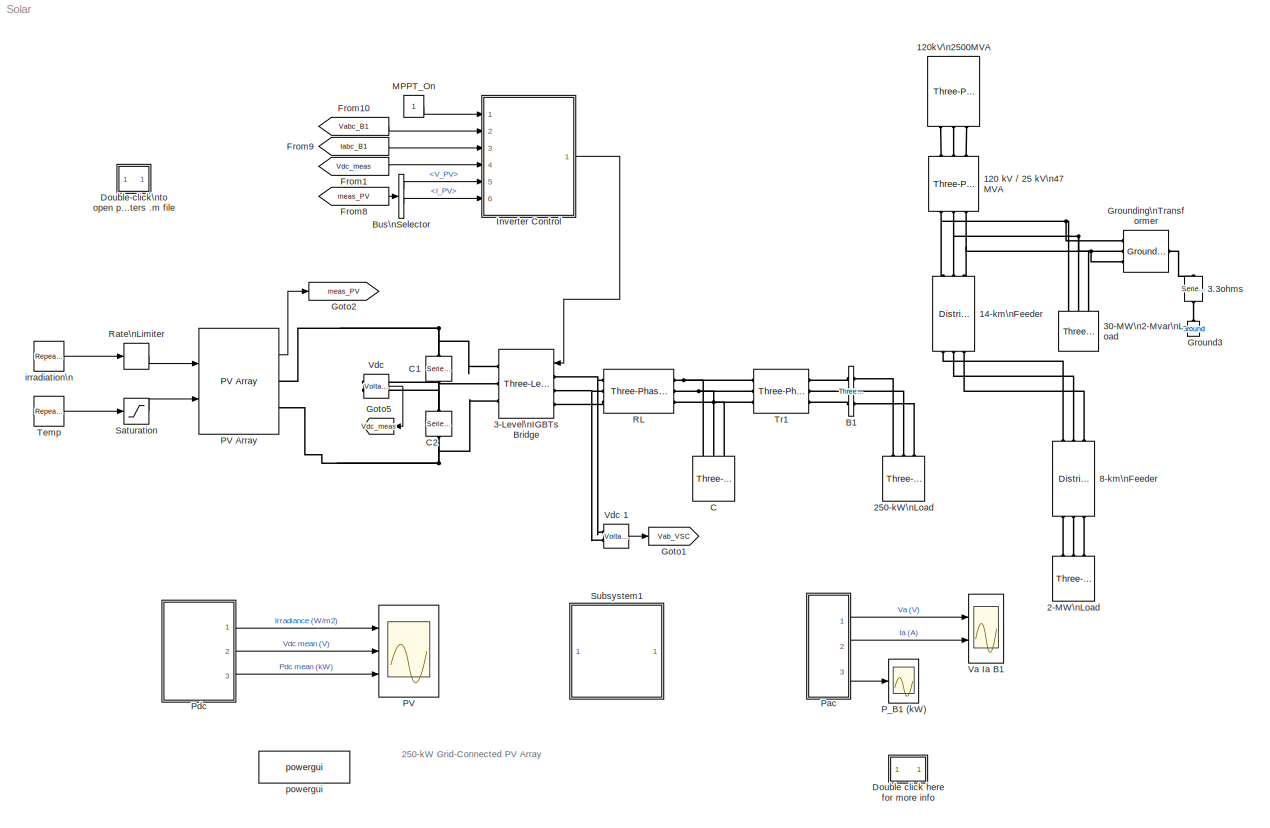
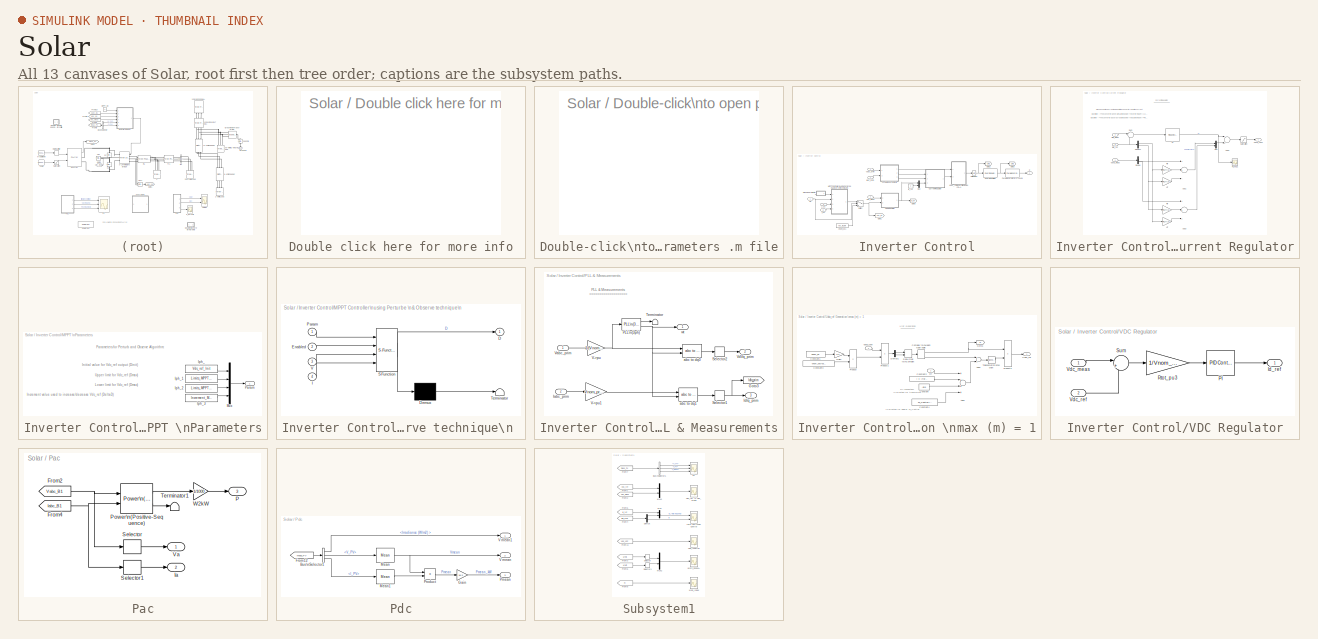
[diagram: thumbnail index - all 13 canvases of the model, root first then tree order]
MODEL Solar
KIND model
CONFIG InitFcn = power_PVarray_250kW_param;
CONFIG PreLoadFcn = power_PVarray_250kW_param;
BLOCK [Reference] 120 kV // 25 kV\n47 MVA  REF=powerlib/Elements/Three-Phase\nTransformer\n(Two Windings)
  AttributesFormatString = \\n
  BreakLoop = off
  CoreType = Three single-phase transformers
  DataFile = 'basic_model'
  DataType = off
  DiscreteSolver = Trapezoidal iterative
  Hysteresis = off
  InitialFluxes = [ 0.8 , -0.8 , 0.7 ]
  L0 = 0.5
  Lm = 500
  Measurements = None
  NominalPower = [47e6 Fnom ]
  Ports = [0, 0, 0, 0, 0, 3, 3]
  Rm = 500
  SID = 1867
  Saturation = [ 0,0  ;  0.005,1.2  ;  1.0,1.4 ]
  SetInitialFlux = off
  SetSaturation = off
  SourceBlock = powerlib/Elements/Three-Phase\nTransformer\n(Two Windings)
  SourceProductBaseCode = PS
  SourceProductName = Simscape Electrical
  SourceType = Three-Phase Transformer (Two Windings)
  TransfoNumber = 0
  UNITS = pu
  Winding1 = [ 120e3  0.08/30   0.08 ]
  Winding1Connection = Yg
  Winding2 = [ Vnom_prim  0.08/30  0.08]
  Winding2Connection = Delta (D1)
BLOCK [Reference] 120kV\n2500MVA  REF=powerlib/Electrical\nSources/Three-Phase Source
  BaseVoltage = 120e3
  BusType = swing
  Frequency = Fnom
  Inductance = 16.58e-3
  InternalConnection = Yg
  NonIdealSource = on
  PhaseAngle = 0
  PhaseAngles_phases = [0 -120 +120]
  Ports = [0, 0, 0, 0, 0, 0, 3]
  Pref = 0
  Prefabc = [10e3, 10e3, 10e3]
  Qmax = inf
  Qmin = -inf
  Qref = 0
  Qrefabc = [0, 0, 0]
  Resistance = 0.8929
  SID = 1868
  ShortCircuitLevel = 2500e6
  SourceBlock = powerlib/Electrical\nSources/Three-Phase Source
  SourceProductBaseCode = PS
  SourceProductName = Simscape Electrical
  SourceType = Three-Phase Source
  SpecifyImpedance = on
  Voltage = 120e3*1.02
  VoltagePhases = off
  Voltage_phases = [25e3 25e3 25e3]/sqrt(3)
  XRratio = 7
BLOCK [Reference] 14-km\nFeeder  REF=powerlib/Elements/Distributed Parameters Line
  Capacitance = [11.33e-009 5.01e-009]
  Frequency = Fnom
  I1 = ones(3,3)
  I2 = ones(3,3)
  Inductance = [1.05e-3 3.32e-3]
  Length = 14
  Measurements = None
  Phases = 3
  Ports = [0, 0, 0, 0, 0, 3, 3]
  Resistance = [0.1153 0.413]
  SID = 1877
  SourceBlock = powerlib/Elements/Distributed Parameters Line
  SourceProductBaseCode = PS
  SourceProductName = Simscape Electrical
  SourceType = Distributed Parameters Line
  V1 = ones(3,3)
  V2 = ones(3,3)
  nHarmo = 1
  x1 = [-6.06060606060606e-05 2.4750499652042e-09 -3576.42610891627 -24705.9443102034;-5.55555555555556e-05 2.47120738765454e-09 -3529.3796467449 -24712.7090235075;-5.05050505050505e-05 2.46735585148894e-09 -3482.32038987367 -24719.3841483496;-4.54545454545455e-05 2.46349537066995e-09 -3435.2485089017 -24725.9696605309;-4.04040404040404e-05 2.4596259591926e-09 -3388.16417447388 -24732.4655361777;-3.53535...<+545ch>
  x2 = [-6.06060606060606e-05 2.20971471483053e-09 -4045.01586007327 -24492.383894194;-5.55555555555556e-05 2.20645346022608e-09 -3998.37516637216 -24500.0411868583;-5.05050505050505e-05 2.20318420679106e-09 -3951.71997776958 -24507.6096620236;-4.54545454545455e-05 2.19990696637717e-09 -3905.05046339984 -24515.0892922526;-4.04040404040404e-05 2.19662175086506e-09 -3858.36679244917 -24522.4800504301;-3.53...<+545ch>
  x3 = [-6.06060606060606e-05 -1.70170032827132e-11 0.349732307299029 7.33339900959955;-5.55555555555556e-05 -1.70367702304972e-11 0.335768922747628 7.33405160544165;-5.05050505050505e-05 -1.70564754166167e-11 0.321804320967417 7.3346776138949;-4.54545454545455e-05 -1.70761187696365e-11 0.307838552582841 7.33527703268989;-4.04040404040404e-05 -1.70957002183456e-11 0.293871668222575 7.33584985965362;-3.53...<+547ch>
  x4 = [-6.06060606060606e-05 2.25999955234279e-11 -26.7530894115626 -168.075719805462;-5.55555555555556e-05 2.26122579132764e-11 -26.433025690119 -168.126352883932;-5.05050505050505e-05 2.26244383292138e-11 -26.1128661437249 -168.176376471094;-4.54545454545455e-05 2.26365367270838e-11 -25.7926119330219 -168.225790385599;-4.04040404040404e-05 2.26485530630272e-11 -25.4722642189951 -168.274594448315;-3.53...<+547ch>
  x5 = 5.70973484498186e-05
BLOCK [Reference] 2-MW\nLoad  REF=powerlib/Elements/Three-Phase\nParallel RLC Load
  ActivePower = 2e6
  AttributesFormatString = \\n
  CapacitivePower = 0
  Configuration = Y (grounded)
  InductivePower = 0
  LConnTagsString = A|B|C
  LoadType = constant Z
  Measurements = None
  NominalFrequency = Fnom
  NominalVoltage = Vnom_prim
  Pabc = [10e3 9e3 11e3]
  Pabcp = [10e3 9e3 11e3]
  Ports = [0, 0, 0, 0, 0, 3]
  QCabc = [100 90 110]
  QCabcp = [100 90 110]
  QLabc = [100 90 110]
  QLabcp = [100 90 110]
  SID = 1876
  SourceBlock = powerlib/Elements/Three-Phase\nParallel RLC Load
  SourceProductBaseCode = PS
  SourceProductName = Simscape Electrical
  SourceType = Three-Phase Parallel RLC Load
  UnbalancedPower = off
  Vabc = [1e3 1e3 1e3]
  Vabcp = [1e3 1e3 1e3]
BLOCK [Reference] 250-kW\nLoad  REF=powerlib/Elements/Three-Phase\nParallel RLC Load
  ActivePower = 250e3
  AttributesFormatString = \\n
  CapacitivePower = 0
  Configuration = Y (grounded)
  InductivePower = 0
  LConnTagsString = A|B|C
  LoadType = constant Z
  Measurements = None
  NominalFrequency = Fnom
  NominalVoltage = Vnom_prim
  Pabc = [10e3 9e3 11e3]
  Pabcp = [10e3 9e3 11e3]
  Ports = [0, 0, 0, 0, 0, 3]
  QCabc = [100 90 110]
  QCabcp = [100 90 110]
  QLabc = [100 90 110]
  QLabcp = [100 90 110]
  SID = 2209
  SourceBlock = powerlib/Elements/Three-Phase\nParallel RLC Load
  SourceProductBaseCode = PS
  SourceProductName = Simscape Electrical
  SourceType = Three-Phase Parallel RLC Load
  UnbalancedPower = off
  Vabc = [1e3 1e3 1e3]
  Vabcp = [1e3 1e3 1e3]
BLOCK [Reference] 3-Level\nIGBTs Bridge  REF=powerlib/Power\nElectronics/Three-Level Bridge
  Arms = 3
  AttributesFormatString = \\n
  Device = IGBT / Diodes
  ForwardVoltages = [  Vfd  Vf ]
  Measurements = None
  Ports = [1, 0, 0, 0, 0, 3, 3]
  Ron = Ron
  SID = 497
  SbubberCapacitance = Cs
  SnubberResistance = Rs
  SourceBlock = powerlib/Power\nElectronics/Three-Level Bridge
  SourceProductBaseCode = PS
  SourceProductName = Simscape Electrical
  SourceType = Three-Level Bridge
BLOCK [Reference] 3.3ohms   REF=powerlib/Elements/Series RLC Branch
  BranchType = R
  Capacitance = []
  Inductance = []
  InitialCurrent = 0
  InitialVoltage = 0
  LConnTagsString = __new0
  Measurements = None
  Ports = [0, 0, 0, 0, 0, 1, 1]
  RConnTagsString = __new0
  Resistance = 3.3
  SID = 1871
  SetiL0 = off
  Setx0 = off
  SourceBlock = powerlib/Elements/Series RLC Branch
  SourceProductBaseCode = PS
  SourceProductName = Simscape Electrical
  SourceType = Series RLC Branch
BLOCK [Reference] 30-MW\n2-Mvar\nLoad  REF=powerlib/Elements/Three-Phase\nParallel RLC Load
  ActivePower = 30e6
  AttributesFormatString = \\n
  CapacitivePower = 0
  Configuration = Y (grounded)
  InductivePower = 2e6
  LConnTagsString = A|B|C
  LoadType = constant Z
  Measurements = None
  NominalFrequency = Fnom
  NominalVoltage = Vnom_prim
  Pabc = [10e3 9e3 11e3]
  Pabcp = [10e3 9e3 11e3]
  Ports = [0, 0, 0, 0, 0, 3]
  QCabc = [100 90 110]
  QCabcp = [100 90 110]
  QLabc = [100 90 110]
  QLabcp = [100 90 110]
  SID = 1872
  SourceBlock = powerlib/Elements/Three-Phase\nParallel RLC Load
  SourceProductBaseCode = PS
  SourceProductName = Simscape Electrical
  SourceType = Three-Phase Parallel RLC Load
  UnbalancedPower = off
  Vabc = [1e3 1e3 1e3]
  Vabcp = [1e3 1e3 1e3]
BLOCK [Reference] 8-km\nFeeder  REF=powerlib/Elements/Distributed Parameters Line
  Capacitance = [11.33e-009 5.01e-009]
  Frequency = Fnom
  I1 = ones(3,3)
  I2 = ones(3,3)
  Inductance = [1.05e-3 3.32e-3]
  Length = 8
  Measurements = None
  Phases = 3
  Ports = [0, 0, 0, 0, 0, 3, 3]
  Resistance = [0.1153 0.413]
  SID = 2208
  SourceBlock = powerlib/Elements/Distributed Parameters Line
  SourceProductBaseCode = PS
  SourceProductName = Simscape Electrical
  SourceType = Distributed Parameters Line
  V1 = ones(3,3)
  V2 = ones(3,3)
  nHarmo = 1
  x1 = [-3.53535353535354e-05 2.19332857216427e-09 -3811.66913415511 -24529.7819097632;-3.03030303030303e-05 2.19002744221325e-09 -3764.95765780591 -24536.9948437812;-2.52525252525253e-05 2.18671837297923e-09 -3718.23253273994 -24544.1188263357;-2.02020202020202e-05 2.18340137645824e-09 -3671.493928345 -24551.1538316011;-1.51515151515152e-05 2.18007646467506e-09 -3624.74201405781 -24558.0998340738;-1.010...<+151ch>
  x2 = [-3.53535353535354e-05 2.22935392180009e-09 -4047.76151412798 -24417.95076388;-3.03030303030303e-05 2.22623375076615e-09 -4001.26253571318 -24425.6134191717;-2.52525252525253e-05 2.22310550919418e-09 -3954.74905192964 -24433.1875267797;-2.02020202020202e-05 2.21996920842467e-09 -3908.22123139794 -24440.6730592464;-1.51515151515152e-05 2.21682485982734e-09 -3861.67924279064 -24448.0699894352;-1.010...<+152ch>
  x3 = [-3.53535353535354e-05 -5.68023514162812e-12 -0.39427735646184 -2.24142141422518;-3.03030303030303e-05 -5.67363395722736e-12 -0.390008987980582 -2.24216805330469;-2.52525252525253e-05 -5.66701220478041e-12 -0.38573920563954 -2.24290656408116;-2.02020202020202e-05 -5.66036990829242e-12 -0.38146802491752 -2.24363694387735;-1.51515151515152e-05 -5.65370709184305e-12 -0.377195461298399 -2.244359190045...<+164ch>
  x4 = [-3.53535353535354e-05 1.15734193036047e-11 -26.1994856823658 -158.04729334921;-3.03030303030303e-05 1.15572122743649e-11 -25.8985170321696 -158.096890546797;-2.52525252525253e-05 1.15409633479429e-11 -25.5974544947225 -158.145914611861;-2.02020202020202e-05 1.15246725832443e-11 -25.2962991614359 -158.19436536668;-1.51515151515152e-05 1.15083400393262e-11 -24.9950521240574 -158.24224263561;-1.0101...<+151ch>
  x5 = 3.26270562570392e-05
BLOCK [Reference] B1  REF=powerlib/Measurements/Three-Phase\nV-I Measurement
  CurrentMeasurement = yes
  Ipu = off
  LabelI = Iabc_B1
  LabelV = Vabc_B1
  OutputType = Magnitude
  PSBequivalent = 0
  Pbase = 100e6
  PhasorSimulation = off
  Ports = [0, 0, 0, 0, 0, 3, 3]
  SID = 596
  SetLabelI = on
  SetLabelV = on
  SourceBlock = powerlib/Measurements/Three-Phase\nV-I Measurement
  SourceProductBaseCode = PS
  SourceProductName = Simscape Electrical
  SourceType = Three-Phase VI Measurement
  Vbase = 500e3
  VoltageMeasurement = phase-to-ground
  Vpu = off
  VpuLL = off
BLOCK [BusSelector] Bus\nSelector
  OutputAsBus = off
  OutputSignals = V_PV,I_PV
  Ports = [1, 2]
  SID = 1904
BLOCK [Reference] C  REF=powerlib/Elements/Three-Phase\nSeries RLC Load
  ActivePower = Pc
  AttributesFormatString = \\n
  CapacitivePower = Qc
  Configuration = Delta
  InductivePower = 0
  LConnTagsString = A|B|C
  LoadType = constant Z
  Measurements = None
  NominalFrequency = Fnom
  NominalVoltage = Vnom_sec
  Pabc = [10e3 9e3 11e3]
  Pabcp = [10e3 9e3 11e3]
  Ports = [0, 0, 0, 0, 0, 3]
  QCabc = [100 90 110]
  QCabcp = [100 90 110]
  QLabc = [100 90 110]
  QLabcp = [100 90 110]
  SID = 809
  SourceBlock = powerlib/Elements/Three-Phase\nSeries RLC Load
  SourceProductBaseCode = PS
  SourceProductName = Simscape Electrical
  SourceType = Three-Phase Series RLC Load
  UnbalancedPower = off
  Vabc = [1e3 1e3 1e3]
  Vabcp = [1e3 1e3 1e3]
BLOCK [Reference] C1  REF=powerlib/Elements/Series RLC Branch
  AttributesFormatString = \\n
  BranchType = C
  Capacitance = Clink
  Inductance = 1.0
  InitialCurrent = 0
  InitialVoltage = Vnom_dc/2
  LConnTagsString = __new0
  Measurements = None
  Ports = [0, 0, 0, 0, 0, 1, 1]
  RConnTagsString = __new0
  Resistance = 1.0
  SID = 495
  SetiL0 = off
  Setx0 = on
  SourceBlock = powerlib/Elements/Series RLC Branch
  SourceProductBaseCode = PS
  SourceProductName = Simscape Electrical
  SourceType = Series RLC Branch
BLOCK [Reference] C2  REF=powerlib/Elements/Series RLC Branch
  AttributesFormatString = \\n
  BranchType = C
  Capacitance = Clink
  Inductance = 1.0
  InitialCurrent = 0
  InitialVoltage = Vnom_dc/2
  LConnTagsString = __new0
  Measurements = None
  Ports = [0, 0, 0, 0, 0, 1, 1]
  RConnTagsString = __new0
  Resistance = 1.0
  SID = 1075
  SetiL0 = off
  Setx0 = on
  SourceBlock = powerlib/Elements/Series RLC Branch
  SourceProductBaseCode = PS
  SourceProductName = Simscape Electrical
  SourceType = Series RLC Branch
BLOCK [SubSystem] Double click here for more info
  OpenFcn = showdemo(bdroot(gcb))
  Ports = []
  RequestExecContextInheritance = off
  SID = 2762
BLOCK [SubSystem] Double-click\nto open parameters .m file
  OpenFcn = open('power_PVarray_250kW_param.m')
  Ports = []
  RequestExecContextInheritance = off
  SID = 2219
BLOCK [From] From1
  CloseFcn = tagdialog Close
  GotoTag = Vdc_meas
  SID = 1902
  TagVisibility = global
BLOCK [From] From10
  CloseFcn = tagdialog Close
  GotoTag = Vabc_B1
  SID = 601
  TagVisibility = global
BLOCK [From] From8
  CloseFcn = tagdialog Close
  GotoTag = meas_PV
  SID = 1905
  TagVisibility = global
BLOCK [From] From9
  CloseFcn = tagdialog Close
  GotoTag = Iabc_B1
  SID = 600
  TagVisibility = global
BLOCK [Goto] Goto1
  GotoTag = Vab_VSC
  SID = 1006
  TagVisibility = global
BLOCK [Goto] Goto2
  GotoTag = meas_PV
  SID = 1244
  TagVisibility = global
BLOCK [Goto] Goto5
  GotoTag = Vdc_meas
  SID = 603
  TagVisibility = global
BLOCK [Reference] Ground3  REF=powerlib/Elements/Ground
  AttributesFormatString = \\n
  LConnTagsString = a
  Ports = [0, 0, 0, 0, 0, 1]
  SID = 1873
  SourceBlock = powerlib/Elements/Ground
  SourceProductBaseCode = PS
  SourceProductName = Simscape Electrical
  SourceType = Ground
BLOCK [Reference] Grounding\nTransformer   REF=powerlib/Elements/Grounding\nTransformer 
  MagnetizationBranch_SI = [1041.7 3.927e+005]
  MagnetizationBranch_pu = [500 500]
  Measurements = None
  NominalPower = [100e6   Fnom]
  NominalVoltage = Vnom_prim
  Ports = [0, 0, 0, 0, 0, 3, 1]
  SID = 1874
  SourceBlock = powerlib/Elements/Grounding\nTransformer
  SourceProductBaseCode = PS
  SourceProductName = Simscape Electrical
  SourceType = Grounding Transformer
  UNITS = pu
  ZeroSequenceImpedance_SI = [0.052083 589.05]
  ZeroSequenceImpedance_pu = [0.025 0.75]
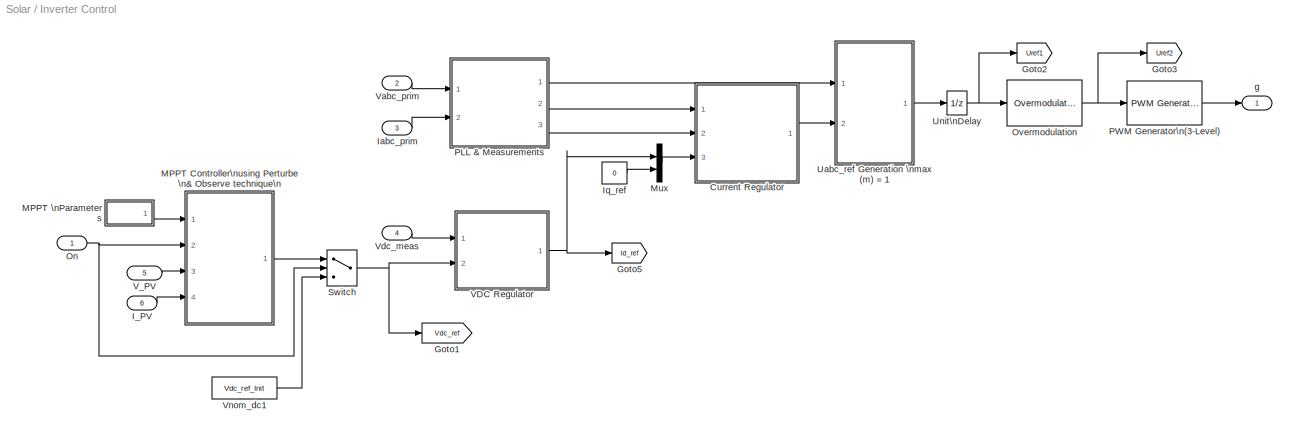
BLOCK [SubSystem] Inverter Control
  Ports = [6, 1]
  RequestExecContextInheritance = off
  SID = 856
BLOCK [SubSystem] Inverter Control/Current Regulator
  Ports = [3, 1]
  RequestExecContextInheritance = off
  SID = 861
BLOCK [Sum] Inverter Control/Current Regulator/Add1
  InputSameDT = off
  Inputs = ++-
  OutDataTypeStr = Inherit: Inherit via internal rule
  Ports = [3, 1]
  SID = 865
  SaturateOnIntegerOverflow = off
BLOCK [Sum] Inverter Control/Current Regulator/Add2
  InputSameDT = off
  OutDataTypeStr = Inherit: Inherit via internal rule
  Ports = [2, 1]
  SID = 866
  SaturateOnIntegerOverflow = off
BLOCK [Sum] Inverter Control/Current Regulator/Add3
  InputSameDT = off
  Inputs = +++
  OutDataTypeStr = Inherit: Inherit via internal rule
  Ports = [3, 1]
  SID = 867
  SaturateOnIntegerOverflow = off
BLOCK [Demux] Inverter Control/Current Regulator/Demux
  DisplayOption = bar
  Outputs = 2
  Ports = [1, 2]
  SID = 868
BLOCK [Demux] Inverter Control/Current Regulator/Demux1
  DisplayOption = bar
  Outputs = 2
  Ports = [1, 2]
  SID = 869
BLOCK [Inport] Inverter Control/Current Regulator/IdIq_meas
  IconDisplay = Port number
  Port = 2
  PortDimensions = 2
  SID = 863
BLOCK [Inport] Inverter Control/Current Regulator/IdIq_ref
  IconDisplay = Port number
  Port = 3
  PortDimensions = 2
  SID = 864
BLOCK [Gain] Inverter Control/Current Regulator/Lff
  Gain = RLff(2)
  SID = 872
BLOCK [Gain] Inverter Control/Current Regulator/Lff  
  Gain = RLff(2)
  SID = 871
BLOCK [Mux] Inverter Control/Current Regulator/Mux
  DisplayOption = bar
  Inputs = 2
  Ports = [2, 1]
  SID = 873
BLOCK [Reference] Inverter Control/Current Regulator/PI  REF=simulink/Continuous/PID Controller
  AWVariant = Passthrough
  AntiWindupMode = none
  Controller = PI
  ControllerParametersSource = internal
  D = 0
  DGainOutDataTypeStr = Inherit: Inherit via internal rule
  DOutMax = []
  DOutMin = []
  DParamDataTypeStr = Inherit: Inherit via internal rule
  DParamMax = []
  DParamMin = []
  DProdOutDataTypeStr = Inherit: Inherit via internal rule
  DVariant = Disabled
  DerivativeFilterVariant = Disabled
  DifferentiatorICPrevScaledInput = 0
  DifferentiatorOutDataTypeStr = Inherit: Inherit via internal rule
  DifferentiatorOutMax = []
  DifferentiatorOutMin = []
  DivideOutDataTypeStr = Inherit: Inherit via internal rule
  DivideOutMax = []
  DivideOutMin = []
  ExternalReset = none
  ExternalResetVariant = Disabled
  FdbkBlocksVariant = Forward
  FilterContinuousStateAttributes = ''
  FilterDiffDenAccumDataTypeStr = Inherit: Inherit via internal rule
  FilterDiffDenProductOutputDataTypeStr = Inherit: Inherit via internal rule
  FilterDiffNumAccumDataTypeStr = Inherit: Inherit via internal rule
  FilterDiffNumProductOutputDataTypeStr = Inherit: Inherit via internal rule
  FilterDiffOutCoefDataTypeStr = Inherit: Inherit via internal rule
  FilterDiffOutCoefMax = []
  FilterDiffOutCoefMin = []
  FilterICVariant = Disabled
  FilterMethod = Forward Euler
  FilterOutDataTypeStr = Inherit: Inherit via internal rule
  FilterOutMax = []
  FilterOutMin = []
  FilterRTWStateStorageClass = Auto
  FilterStateMustResolveToSignalObject = off
  Form = Parallel
  I = Ki_Ireg
  IGainOutDataTypeStr = Inherit: Inherit via internal rule
  IOutMax = []
  IOutMin = []
  IParamDataTypeStr = Inherit: Inherit via internal rule
  IParamMax = []
  IParamMin = []
  IProdOutDataTypeStr = Inherit: Inherit via internal rule
  IVariant = InternalParameters
  IdealPFdbkVariant = Disabled
  IdealPVariant = Disabled
  IgnoreLimit = off
  InitialConditionForFilter = 0
  InitialConditionForIntegrator = 0
  InitialConditionSetting = Auto
  InitialConditionSource = internal
  IntegratorContinuousStateAttributes = ''
  IntegratorICVariant = InternalICs
  IntegratorMethod = Forward Euler
  IntegratorOutDataTypeStr = Inherit: Inherit via internal rule
  IntegratorOutMax = []
  IntegratorOutMin = []
  IntegratorRTWStateStorageClass = Auto
  IntegratorStateMustResolveToSignalObject = off
  IntegratorVariant = Discrete
  Kb = 1
  KbOutDataTypeStr = Inherit: Inherit via internal rule
  KbOutMax = []
  KbOutMin = []
  KbParamDataTypeStr = Inherit: Inherit via internal rule
  KbParamMax = []
  KbParamMin = []
  Kt = 1
  KtOutDataTypeStr = Inherit: Inherit via internal rule
  KtOutMax = []
  KtOutMin = []
  KtParamDataTypeStr = Inherit: Inherit via internal rule
  KtParamMax = []
  KtParamMin = []
  LimitOutput = on
  LinearizeAsGain = off
  LockScale = off
  LowerSaturationLimit = LimitL_Ireg
  N = 100
  NCopyVariant = Disabled_SignalSpec
  NGainOutDataTypeStr = Inherit: Inherit via internal rule
  NOutMax = []
  NOutMin = []
  NParamDataTypeStr = Inherit: Inherit via internal rule
  NParamMax = []
  NParamMin = []
  NProdOutDataTypeStr = Inherit: Inherit via internal rule
  NVariant = Disabled
  P = Kp_Ireg
  PCopyVariant = Disabled
  PGainOutDataTypeStr = Inherit: Inherit via internal rule
  POutMax = []
  POutMin = []
  PParamDataTypeStr = Inherit: Inherit via internal rule
  PParamMax = []
  PParamMin = []
  PProdOutDataTypeStr = Inherit: Inherit via internal rule
  ParallelPVariant = InternalParameters
  Ports = [1, 1]
  ReciprocalOutDataTypeStr = Inherit: Inherit via internal rule
  ReciprocalOutMax = []
  ReciprocalOutMin = []
  RndMeth = Floor
  SID = 874
  SampleTime = Ts_Control
  SatFdbkVariant = Disabled
  SatVariant = Enabled
  SaturateOnIntegerOverflow = off
  SaturationOutDataTypeStr = Inherit: Same as input
  SaturationOutMax = []
  SaturationOutMin = []
  SourceBlock = simulink/Continuous/PID Controller
  SourceProductBaseCode = SL
  SourceProductName = Simulink
  SourceType = PID 1dof
  SumAccumDataTypeStr = Inherit: Inherit via internal rule
  SumDAccumDataTypeStr = Inherit: Inherit via internal rule
  SumDOutDataTypeStr = Inherit: Inherit via internal rule
  SumDOutMax = []
  SumDOutMin = []
  SumDenAccumDataTypeStr = Inherit: Inherit via internal rule
  SumDenOutDataTypeStr = Inherit: Inherit via internal rule
  SumDenOutMax = []
  SumDenOutMin = []
  SumFdbkVariant = Disabled
  SumI1AccumDataTypeStr = Inherit: Inherit via internal rule
  SumI1OutDataTypeStr = Inherit: Inherit via internal rule
  SumI1OutMax = []
  SumI1OutMin = []
  SumI2AccumDataTypeStr = Inherit: Inherit via internal rule
  SumI2OutDataTypeStr = Inherit: Inherit via internal rule
  SumI2OutMax = []
  SumI2OutMin = []
  SumI3AccumDataTypeStr = Inherit: Inherit via internal rule
  SumI3OutDataTypeStr = Inherit: Inherit via internal rule
  SumI3OutMax = []
  SumI3OutMin = []
  SumI4AccumDataTypeStr = Inherit: Inherit via internal rule
  SumI4OutDataTypeStr = Inherit: Inherit via internal rule
  SumI4OutMax = []
  SumI4OutMin = []
  SumNumAccumDataTypeStr = Inherit: Inherit via internal rule
  SumNumOutDataTypeStr = Inherit: Inherit via internal rule
  SumNumOutMax = []
  SumNumOutMin = []
  SumOutDataTypeStr = Inherit: Inherit via internal rule
  SumOutMax = []
  SumOutMin = []
  SumVariant = Sum_PI
  TRSumVariant = Passthrough
  TRVariant = Disabled
  TimeDomain = Discrete-time
  TrackingMode = off
  TunerSelectOption = Transfer Function Based (PID Tuner App)
  UpperSaturationLimit = LimitU_Ireg
  UseFilter = on
  ZeroCross = on
BLOCK [Scope] Inverter Control/Current Regulator/PI_Ireg1
  Floating = off
  NumInputPorts = 1
  Ports = [1]
  SID = 876
  ScopeSpecificationString = C++SS(StrPVP('Location','[1318, 429, 1642, 668]'),MxPVP('AxesTitles',53,'struct(''axes1'',''%<SignalLabel>'')'),MxPVP('ScopeGraphics',56,'struct(''FigureColor'',''[0.5 0.5 0.5]'',''AxesColor'',''[0 0 0]'',''AxesTickColor'',''[1 1 1]'',''LineColors'',''[1 1 0;1 0 1;0 1 1;1 0 0;0 1 0;0 0 1]'',''LineStyles'',''-|-|-|-|-|-'',''LineWidths'',''[0.5 0.5 0.5 0.5 0.5 0.5]'',''MarkerStyles'',''none|none|non...<+191ch>
BLOCK [Gain] Inverter Control/Current Regulator/Rff
  Gain = RLff(1)
  SID = 878
BLOCK [Gain] Inverter Control/Current Regulator/Rff 
  Gain = RLff(1)
  SID = 877
BLOCK [Saturate] Inverter Control/Current Regulator/Saturation
  InputPortMap = u0
  LowerLimit = LimitL_Ireg
  Ports = [1, 1]
  SID = 879
  UpperLimit = LimitU_Ireg
BLOCK [Sum] Inverter Control/Current Regulator/Sum
  IconShape = round
  InputSameDT = off
  Inputs = |-+
  OutDataTypeStr = Inherit: Inherit via internal rule
  Ports = [2, 1]
  SID = 880
  SaturateOnIntegerOverflow = off
BLOCK [Outport] Inverter Control/Current Regulator/VdVq_conv
  IconDisplay = Port number
  SID = 881
BLOCK [Inport] Inverter Control/Current Regulator/VdVq_meas
  IconDisplay = Port number
  PortDimensions = 2
  SID = 862
BLOCK [Goto] Inverter Control/Goto1
  GotoTag = Vdc_ref
  SID = 1897
  TagVisibility = global
BLOCK [Goto] Inverter Control/Goto2
  GotoTag = Uref1
  SID = 2204
  TagVisibility = global
BLOCK [Goto] Inverter Control/Goto3
  GotoTag = Uref2
  SID = 2207
  TagVisibility = global
BLOCK [Goto] Inverter Control/Goto5
  GotoTag = Id_ref
  SID = 1726
  TagVisibility = global
BLOCK [Inport] Inverter Control/I_PV
  IconDisplay = Port number
  Port = 6
  PortDimensions = 1
  SID = 1899
BLOCK [Inport] Inverter Control/Iabc_prim
  IconDisplay = Port number
  Port = 3
  PortDimensions = 3
  SID = 858
BLOCK [Constant] Inverter Control/Iq_ref
  SID = 883
  Value = 0
BLOCK [SubSystem] Inverter Control/MPPT Controller\nusing Perturbe \n& Observe technique\n 
  ErrorFcn = Stateflow.Translate.translate
  PermitHierarchicalResolution = ExplicitOnly
  Ports = [4, 1]
  RequestExecContextInheritance = off
  SFBlockType = MATLAB Function
  SID = 1896
  TreatAsAtomicUnit = on
BLOCK [Demux] Inverter Control/MPPT Controller\nusing Perturbe \n& Observe technique\n / Demux 
  Outputs = 1
  Ports = [1, 1]
  SID = 1896::130
BLOCK [S-Function] Inverter Control/MPPT Controller\nusing Perturbe \n& Observe technique\n / SFunction 
  EnableBusSupport = off
  FunctionName = sf_sfun
  PortCounts = [4 2]
  Ports = [4, 2]
  SFcnIsStateOwnerBlock = off
  SFunctionDeploymentMode = off
  SID = 1896::129
  Tag = Stateflow S-Function Solar 1
BLOCK [Terminator] Inverter Control/MPPT Controller\nusing Perturbe \n& Observe technique\n / Terminator 
  SID = 1896::131
BLOCK [Outport] Inverter Control/MPPT Controller\nusing Perturbe \n& Observe technique\n /D
  IconDisplay = Port number
  SID = 1896::35
BLOCK [Inport] Inverter Control/MPPT Controller\nusing Perturbe \n& Observe technique\n /Enabled
  IconDisplay = Port number
  Port = 2
  SID = 1896::91
BLOCK [Inport] Inverter Control/MPPT Controller\nusing Perturbe \n& Observe technique\n /I
  IconDisplay = Port number
  Port = 4
  SID = 1896::1
BLOCK [Inport] Inverter Control/MPPT Controller\nusing Perturbe \n& Observe technique\n /Param
  IconDisplay = Port number
  SID = 1896::90
BLOCK [Inport] Inverter Control/MPPT Controller\nusing Perturbe \n& Observe technique\n /V
  IconDisplay = Port number
  Port = 3
  SID = 1896::85
BLOCK [SubSystem] Inverter Control/MPPT \nParameters
  Ports = [0, 1]
  RequestExecContextInheritance = off
  SID = 1883
BLOCK [Constant] Inverter Control/MPPT \nParameters/Iph_
  SID = 1884
  Value = Vdc_ref_Init
BLOCK [Constant] Inverter Control/MPPT \nParameters/Iph_1
  SID = 1885
  Value = Limits_MPPT(1)
BLOCK [Constant] Inverter Control/MPPT \nParameters/Iph_2
  SID = 1886
  Value = Limits_MPPT(2)
BLOCK [Constant] Inverter Control/MPPT \nParameters/Iph_3
  SID = 1887
  Value = Increment_MPPT
BLOCK [Mux] Inverter Control/MPPT \nParameters/Mux
  DisplayOption = bar
  Ports = [4, 1]
  SID = 1888
BLOCK [Outport] Inverter Control/MPPT \nParameters/Param
  IconDisplay = Port number
  SID = 1889
BLOCK [Mux] Inverter Control/Mux
  DisplayOption = bar
  Inputs = 2
  Ports = [2, 1]
  SID = 884
BLOCK [Inport] Inverter Control/On
  IconDisplay = Port number
  PortDimensions = 1
  SID = 1900
BLOCK [Reference] Inverter Control/Overmodulation  REF=powerlib_meascontrol/Pulse & Signal\nGenerators/Overmodulation
  OverModType = Flat top
  Ports = [1, 1]
  SID = 2201
  SourceBlock = powerlib_meascontrol/Pulse & Signal\nGenerators/Overmodulation
  SourceProductBaseCode = PS
  SourceProductName = Simscape Electrical
  SourceType = Overmodulation
BLOCK [SubSystem] Inverter Control/PLL & Measurements
  Ports = [2, 3]
  RequestExecContextInheritance = off
  SID = 885
BLOCK [Goto] Inverter Control/PLL & Measurements/Goto3
  GotoTag = IdIq_prim
  SID = 890
  TagVisibility = global
BLOCK [Inport] Inverter Control/PLL & Measurements/Iabc_prim
  IconDisplay = Port number
  Port = 2
  SID = 887
BLOCK [Outport] Inverter Control/PLL & Measurements/IdIq_prim
  IconDisplay = Port number
  Port = 3
  SID = 900
BLOCK [Reference] Inverter Control/PLL & Measurements/PLL\n(3ph)  REF=powerlib_meascontrol/PLL/PLL\n(3ph)
  AGC = on
  FilterCutOffFreq = 25
  Fmin = 45
  MaxRateChangeFreq = 12
  ParK = [180, 3200, 1]
  Par_Init = [-0.57  Fnom]
  Ports = [1, 2]
  SID = 1409
  SourceBlock = powerlib_meascontrol/PLL/PLL\n(3ph)
  SourceProductBaseCode = PS
  SourceProductName = Simscape Electrical
  SourceType = PLL (3ph)
  TcD = 1e-4
  Ts = Ts_Control
BLOCK [Selector] Inverter Control/PLL & Measurements/Selector1
  IndexOptions = Index vector (dialog)
  Indices = [1 2]
  InputPortWidth = 3
  OutputSizes = 1
  Ports = [1, 1]
  SID = 892
BLOCK [Selector] Inverter Control/PLL & Measurements/Selector2
  IndexOptions = Index vector (dialog)
  Indices = [1 2]
  InputPortWidth = 3
  OutputSizes = 1
  Ports = [1, 1]
  SID = 893
BLOCK [Terminator] Inverter Control/PLL & Measurements/Terminator
  SID = 1094
BLOCK [Gain] Inverter Control/PLL & Measurements/V->pu
  Gain = 1/(Vnom_prim*sqrt(2)/sqrt(3))
  SID = 894
BLOCK [Gain] Inverter Control/PLL & Measurements/V->pu1
  Gain = Vnom_prim*sqrt(3)/Pnom/sqrt(2)
  SID = 895
BLOCK [Inport] Inverter Control/PLL & Measurements/Vabc_prim
  IconDisplay = Port number
  SID = 886
BLOCK [Outport] Inverter Control/PLL & Measurements/VdVq_prim
  IconDisplay = Port number
  Port = 2
  SID = 899
BLOCK [Reference] Inverter Control/PLL & Measurements/abc to dq0  REF=powerlib_meascontrol/Transformations/abc to dq0
  Alignment = 90 degrees behind phase A axis
  Ports = [2, 1]
  SID = 1407
  SourceBlock = powerlib_meascontrol/Transformations/abc to dq0
  SourceProductBaseCode = PS
  SourceProductName = Simscape Electrical
  SourceType = abc to dq0 Transformation
BLOCK [Reference] Inverter Control/PLL & Measurements/abc to dq1  REF=powerlib_meascontrol/Transformations/abc to dq0
  Alignment = 90 degrees behind phase A axis
  Ports = [2, 1]
  SID = 1408
  SourceBlock = powerlib_meascontrol/Transformations/abc to dq0
  SourceProductBaseCode = PS
  SourceProductName = Simscape Electrical
  SourceType = abc to dq0 Transformation
BLOCK [Outport] Inverter Control/PLL & Measurements/wt
  IconDisplay = Port number
  SID = 898
BLOCK [Reference] Inverter Control/PWM Generator\n(3-Level)  REF=powerlib_meascontrol/Pulse & Signal\nGenerators/PWM Generator\n(3-Level)
  Fc = Fc
  Freq = 60
  ModulatingSignals = off
  ModulatorMode = Unsynchronized
  ModulatorType = Three-phase bridge (12 pulses)
  Phase = 0
  Ports = [1, 1]
  SID = 1411
  SourceBlock = powerlib_meascontrol/Pulse & Signal\nGenerators/PWM Generator\n(3-Level)
  SourceProductBaseCode = PS
  SourceProductName = Simscape Electrical
  SourceType = PWM Generator (3-Level)
  Ts = Ts_PWMgenerator
  m = 0.8
  nF = 27
BLOCK [Switch] Inverter Control/Switch
  Criteria = u2 ~= 0
  InputSameDT = off
  SID = 2220
  SaturateOnIntegerOverflow = off
BLOCK [SubSystem] Inverter Control/Uabc_ref Generation \nmax (m) = 1
  Ports = [2, 1]
  RequestExecContextInheritance = off
  SID = 901
BLOCK [Sum] Inverter Control/Uabc_ref Generation \nmax (m) = 1/Add1
  InputSameDT = off
  Inputs = ++++
  OutDataTypeStr = Inherit: Inherit via internal rule
  Ports = [4, 1]
  SID = 904
  SaturateOnIntegerOverflow = off
BLOCK [Sum] Inverter Control/Uabc_ref Generation \nmax (m) = 1/Add2
  InputSameDT = off
  OutDataTypeStr = Inherit: Inherit via internal rule
  Ports = [2, 1]
  SID = 905
  SaturateOnIntegerOverflow = off
BLOCK [ComplexToMagnitudeAngle] Inverter Control/Uabc_ref Generation \nmax (m) = 1/Complex to\nMagnitude-Angle
  Ports = [1, 2]
  SID = 906
BLOCK [Constant] Inverter Control/Uabc_ref Generation \nmax (m) = 1/Constant
  SID = 907
  Value = -pi/6
BLOCK [Constant] Inverter Control/Uabc_ref Generation \nmax (m) = 1/Constant1
  SID = 908
  Value = Vnom_dc
BLOCK [Constant] Inverter Control/Uabc_ref Generation \nmax (m) = 1/Constant2
  SID = 909
  Value = [ 0  -2*pi/3  2*pi/3  ]
BLOCK [Constant] Inverter Control/Uabc_ref Generation \nmax (m) = 1/Constant3
  SID = 910
  Value = Vnom_sec*sqrt(2)/sqrt(3)
BLOCK [Constant] Inverter Control/Uabc_ref Generation \nmax (m) = 1/Constant4
  SID = 911
  Value = Ts_Control*Fnom*(2*pi)
BLOCK [Demux] Inverter Control/Uabc_ref Generation \nmax (m) = 1/Demux1
  DisplayOption = bar
  Outputs = 2
  Ports = [1, 2]
  SID = 912
BLOCK [Gain] Inverter Control/Uabc_ref Generation \nmax (m) = 1/Gain1
  Gain = 1/2
  OutDataTypeStr = Inherit: Inherit via internal rule
  ParamDataTypeStr = Inherit: Inherit via internal rule
  SID = 913
  SaturateOnIntegerOverflow = off
BLOCK [Goto] Inverter Control/Uabc_ref Generation \nmax (m) = 1/Goto1
  GotoTag = m
  SID = 914
  TagVisibility = global
BLOCK [Product] Inverter Control/Uabc_ref Generation \nmax (m) = 1/Product
  InputSameDT = off
  Inputs = */
  OutDataTypeStr = Inherit: Inherit via internal rule
  Ports = [2, 1]
  SID = 916
  SaturateOnIntegerOverflow = off
BLOCK [Product] Inverter Control/Uabc_ref Generation \nmax (m) = 1/Product1
  InputSameDT = off
  Inputs = */
  OutDataTypeStr = Inherit: Inherit via internal rule
  Ports = [2, 1]
  SID = 917
  SaturateOnIntegerOverflow = off
BLOCK [Product] Inverter Control/Uabc_ref Generation \nmax (m) = 1/Product2
  InputSameDT = off
  Inputs = **
  OutDataTypeStr = Inherit: Inherit via internal rule
  Ports = [2, 1]
  SID = 918
  SaturateOnIntegerOverflow = off
BLOCK [RealImagToComplex] Inverter Control/Uabc_ref Generation \nmax (m) = 1/Real-Imag to\nComplex
  Ports = [2, 1]
  SID = 919
BLOCK [Trigonometry] Inverter Control/Uabc_ref Generation \nmax (m) = 1/Trigonometric\nFunction
  Ports = [1, 1]
  SID = 921
BLOCK [Outport] Inverter Control/Uabc_ref Generation \nmax (m) = 1/Uabc_ref
  IconDisplay = Port number
  SID = 922
BLOCK [Inport] Inverter Control/Uabc_ref Generation \nmax (m) = 1/VdVq_conv
  IconDisplay = Port number
  Port = 2
  SID = 903
BLOCK [Inport] Inverter Control/Uabc_ref Generation \nmax (m) = 1/wt
  IconDisplay = Port number
  SID = 902
BLOCK [UnitDelay] Inverter Control/Unit\nDelay
  HasFrameUpgradeWarning = on
  SID = 2203
  SampleTime = Ts_Control
BLOCK [SubSystem] Inverter Control/VDC Regulator
  Ports = [2, 1]
  RequestExecContextInheritance = off
  SID = 1802
BLOCK [Outport] Inverter Control/VDC Regulator/Id_ref
  IconDisplay = Port number
  InitialOutput = 0
  SID = 1810
BLOCK [Reference] Inverter Control/VDC Regulator/PI  REF=simulink/Continuous/PID Controller
  AWVariant = Passthrough
  AntiWindupMode = none
  Controller = PI
  ControllerParametersSource = internal
  D = 0
  DGainOutDataTypeStr = Inherit: Inherit via internal rule
  DOutMax = []
  DOutMin = []
  DParamDataTypeStr = Inherit: Inherit via internal rule
  DParamMax = []
  DParamMin = []
  DProdOutDataTypeStr = Inherit: Inherit via internal rule
  DVariant = Disabled
  DerivativeFilterVariant = Disabled
  DifferentiatorICPrevScaledInput = 0
  DifferentiatorOutDataTypeStr = Inherit: Inherit via internal rule
  DifferentiatorOutMax = []
  DifferentiatorOutMin = []
  DivideOutDataTypeStr = Inherit: Inherit via internal rule
  DivideOutMax = []
  DivideOutMin = []
  ExternalReset = none
  ExternalResetVariant = Disabled
  FdbkBlocksVariant = Forward
  FilterContinuousStateAttributes = ''
  FilterDiffDenAccumDataTypeStr = Inherit: Inherit via internal rule
  FilterDiffDenProductOutputDataTypeStr = Inherit: Inherit via internal rule
  FilterDiffNumAccumDataTypeStr = Inherit: Inherit via internal rule
  FilterDiffNumProductOutputDataTypeStr = Inherit: Inherit via internal rule
  FilterDiffOutCoefDataTypeStr = Inherit: Inherit via internal rule
  FilterDiffOutCoefMax = []
  FilterDiffOutCoefMin = []
  FilterICVariant = Disabled
  FilterMethod = Forward Euler
  FilterOutDataTypeStr = Inherit: Inherit via internal rule
  FilterOutMax = []
  FilterOutMin = []
  FilterRTWStateStorageClass = Auto
  FilterStateMustResolveToSignalObject = off
  Form = Parallel
  I = Ki_VDCreg
  IGainOutDataTypeStr = Inherit: Inherit via internal rule
  IOutMax = []
  IOutMin = []
  IParamDataTypeStr = Inherit: Inherit via internal rule
  IParamMax = []
  IParamMin = []
  IProdOutDataTypeStr = Inherit: Inherit via internal rule
  IVariant = InternalParameters
  IdealPFdbkVariant = Disabled
  IdealPVariant = Disabled
  IgnoreLimit = off
  InitialConditionForFilter = 0
  InitialConditionForIntegrator = 1
  InitialConditionSetting = Auto
  InitialConditionSource = internal
  IntegratorContinuousStateAttributes = ''
  IntegratorICVariant = InternalICs
  IntegratorMethod = Trapezoidal
  IntegratorOutDataTypeStr = Inherit: Inherit via internal rule
  IntegratorOutMax = []
  IntegratorOutMin = []
  IntegratorRTWStateStorageClass = Auto
  IntegratorStateMustResolveToSignalObject = off
  IntegratorVariant = Discrete
  Kb = 1
  KbOutDataTypeStr = Inherit: Inherit via internal rule
  KbOutMax = []
  KbOutMin = []
  KbParamDataTypeStr = Inherit: Inherit via internal rule
  KbParamMax = []
  KbParamMin = []
  Kt = 1
  KtOutDataTypeStr = Inherit: Inherit via internal rule
  KtOutMax = []
  KtOutMin = []
  KtParamDataTypeStr = Inherit: Inherit via internal rule
  KtParamMax = []
  KtParamMin = []
  LimitOutput = on
  LinearizeAsGain = off
  LockScale = off
  LowerSaturationLimit = LimitL_VDCreg
  N = 100
  NCopyVariant = Disabled_SignalSpec
  NGainOutDataTypeStr = Inherit: Inherit via internal rule
  NOutMax = []
  NOutMin = []
  NParamDataTypeStr = Inherit: Inherit via internal rule
  NParamMax = []
  NParamMin = []
  NProdOutDataTypeStr = Inherit: Inherit via internal rule
  NVariant = Disabled
  P = Kp_VDCreg
  PCopyVariant = Disabled
  PGainOutDataTypeStr = Inherit: Inherit via internal rule
  POutMax = []
  POutMin = []
  PParamDataTypeStr = Inherit: Inherit via internal rule
  PParamMax = []
  PParamMin = []
  PProdOutDataTypeStr = Inherit: Inherit via internal rule
  ParallelPVariant = InternalParameters
  Ports = [1, 1]
  ReciprocalOutDataTypeStr = Inherit: Inherit via internal rule
  ReciprocalOutMax = []
  ReciprocalOutMin = []
  RndMeth = Floor
  SID = 1807
  SampleTime = Ts_Control
  SatFdbkVariant = Disabled
  SatVariant = Enabled
  SaturateOnIntegerOverflow = off
  SaturationOutDataTypeStr = Inherit: Same as input
  SaturationOutMax = []
  SaturationOutMin = []
  SourceBlock = simulink/Continuous/PID Controller
  SourceProductBaseCode = SL
  SourceProductName = Simulink
  SourceType = PID 1dof
  SumAccumDataTypeStr = Inherit: Inherit via internal rule
  SumDAccumDataTypeStr = Inherit: Inherit via internal rule
  SumDOutDataTypeStr = Inherit: Inherit via internal rule
  SumDOutMax = []
  SumDOutMin = []
  SumDenAccumDataTypeStr = Inherit: Inherit via internal rule
  SumDenOutDataTypeStr = Inherit: Inherit via internal rule
  SumDenOutMax = []
  SumDenOutMin = []
  SumFdbkVariant = Disabled
  SumI1AccumDataTypeStr = Inherit: Inherit via internal rule
  SumI1OutDataTypeStr = Inherit: Inherit via internal rule
  SumI1OutMax = []
  SumI1OutMin = []
  SumI2AccumDataTypeStr = Inherit: Inherit via internal rule
  SumI2OutDataTypeStr = Inherit: Inherit via internal rule
  SumI2OutMax = []
  SumI2OutMin = []
  SumI3AccumDataTypeStr = Inherit: Inherit via internal rule
  SumI3OutDataTypeStr = Inherit: Inherit via internal rule
  SumI3OutMax = []
  SumI3OutMin = []
  SumI4AccumDataTypeStr = Inherit: Inherit via internal rule
  SumI4OutDataTypeStr = Inherit: Inherit via internal rule
  SumI4OutMax = []
  SumI4OutMin = []
  SumNumAccumDataTypeStr = Inherit: Inherit via internal rule
  SumNumOutDataTypeStr = Inherit: Inherit via internal rule
  SumNumOutMax = []
  SumNumOutMin = []
  SumOutDataTypeStr = Inherit: Inherit via internal rule
  SumOutMax = []
  SumOutMin = []
  SumVariant = Sum_PI
  TRSumVariant = Passthrough
  TRVariant = Disabled
  TimeDomain = Discrete-time
  TrackingMode = off
  TunerSelectOption = Transfer Function Based (PID Tuner App)
  UpperSaturationLimit = LimitU_VDCreg
  UseFilter = on
  ZeroCross = on
BLOCK [Gain] Inverter Control/VDC Regulator/Rtot_pu3
  Gain = 1/Vnom_dc
  SID = 1808
BLOCK [Sum] Inverter Control/VDC Regulator/Sum
  IconShape = round
  InputSameDT = off
  Inputs = |+-
  OutDataTypeStr = Inherit: Inherit via internal rule
  Ports = [2, 1]
  SID = 1809
  SaturateOnIntegerOverflow = off
BLOCK [Inport] Inverter Control/VDC Regulator/Vdc_meas
  IconDisplay = Port number
  PortDimensions = 1
  SID = 1803
BLOCK [Inport] Inverter Control/VDC Regulator/Vdc_ref
  IconDisplay = Port number
  Port = 2
  PortDimensions = 1
  SID = 1804
BLOCK [Inport] Inverter Control/V_PV
  IconDisplay = Port number
  Port = 5
  PortDimensions = 1
  SID = 1898
BLOCK [Inport] Inverter Control/Vabc_prim
  IconDisplay = Port number
  Port = 2
  PortDimensions = 3
  SID = 857
BLOCK [Inport] Inverter Control/Vdc_meas
  IconDisplay = Port number
  Port = 4
  PortDimensions = 1
  SID = 1801
BLOCK [Constant] Inverter Control/Vnom_dc1
  SID = 2221
  Value = Vdc_ref_Init
BLOCK [Outport] Inverter Control/g
  IconDisplay = Port number
  SID = 931
BLOCK [Constant] MPPT_On
  SID = 1901
BLOCK [Scope] PV
  Floating = off
  NumInputPorts = 3
  Ports = [3]
  SID = 992
  ScopeSpecificationString = C++SS(StrPVP('Location','[157, 172, 620, 668]'),StrPVP('ZoomMode','yonly'),MxPVP('AxesTitles',53,'struct(''axes1'',''%<SignalLabel>'',''axes2'',''%<SignalLabel>'',''axes3'',''%<SignalLabel>'')'),MxPVP('ScopeGraphics',56,'struct(''FigureColor'',''[0.501960784313725 0.501960784313725 0.501960784313725]'',''AxesColor'',''[0 0 0]'',''AxesTickColor'',''[1 1 1]'',''LineColors'',''[1 1 0;1 0 1;0 1 1;1 0 ...<+355ch>
BLOCK [Reference] PV Array  REF=re_lib/Solar/PV Array
  AttributesFormatString = %<ModuleName>\n%<Nser>-module string\n%<Npar> parallel strings
  BAL = on
  I0 = 7.1712e-13
  IL = 6.0978
  Im = 5.69
  Isc = 6.09
  ModuleName = SunPower SPR-415E-WHT-D
  Ncell = 128
  Npar = 88
  Nser = 7
  PlotType = array @ 1000 W/m2 & specified temperatures
  PlotWhenSelected = off
  Pm = 414.801
  Ports = [2, 1, 0, 0, 0, 0, 2]
  Rs = 0.5371
  Rsh = 419.7813
  SID = 2763
  S_vec = [ 1000  500  100 ]
  SourceBlock = re_lib/Solar/PV Array
  SourceProductBaseCode = PS
  SourceProductName = Simscape Electrical
  SourceType = PV array
  Tc = 1e-6
  Temp_C_vec = [ 45 25  ]
  Tfilter = 5e-5
  Vm = 72.9
  Voc = 85.3
  alpha_Isc = 0.00187
  alpha_Isc_pc = 0.030706
  beta_Voc = -0.19534
  beta_Voc_pc = -0.229
  nI = 0.87223
BLOCK [Scope] P_B1 (kW)
  Floating = off
  NumInputPorts = 1
  Ports = [1]
  SID = 1118
  ScopeSpecificationString = C++SS(StrPVP('Location','[869, 222, 1313, 783]'),StrPVP('ZoomMode','yonly'),MxPVP('AxesTitles',53,'struct(''axes1'',''%<SignalLabel>'')'),MxPVP('ScopeGraphics',56,'struct(''FigureColor'',''[0.5 0.5 0.5]'',''AxesColor'',''[0 0 0]'',''AxesTickColor'',''[1 1 1]'',''LineColors'',''[1 1 0;1 0 1;0 1 1;1 0 0;0 1 0;0 0 1]'',''LineStyles'',''-|-|-|-|-|-'',''LineWidths'',''[0.5 0.5 0.5 0.5 0.5 0.5]'',''Mark...<+239ch>
BLOCK [SubSystem] Pac
  Ports = [0, 3]
  RequestExecContextInheritance = off
  SID = 2174
BLOCK [From] Pac/From2
  CloseFcn = tagdialog Close
  GotoTag = Vabc_B1
  SID = 2189
  TagVisibility = global
BLOCK [From] Pac/From4
  CloseFcn = tagdialog Close
  GotoTag = Iabc_B1
  SID = 2190
  TagVisibility = global
BLOCK [Outport] Pac/Ia
  IconDisplay = Port number
  Port = 2
  SID = 2177
BLOCK [Outport] Pac/P
  IconDisplay = Port number
  Port = 3
  SID = 2175
BLOCK [Reference] Pac/Power\n(Positive-Sequence)  REF=powerlib_meascontrol/Measurements/Power\n(Positive-Sequence)
  Freq = 60
  Iinit = [0, 0]
  Ports = [2, 2]
  SID = 1414
  SourceBlock = powerlib_meascontrol/Measurements/Power\n(Positive-Sequence)
  SourceProductBaseCode = PS
  SourceProductName = Simscape Electrical
  SourceType = Power (Positive-Sequence)
  Ts = Ts_Control
  Vinit = [0, 0]
BLOCK [Selector] Pac/Selector
  IndexOptions = Index vector (dialog)
  Indices = [1]
  InputPortWidth = 3
  OutputSizes = 1
  Ports = [1, 1]
  SID = 1110
BLOCK [Selector] Pac/Selector1
  IndexOptions = Index vector (dialog)
  Indices = [1]
  InputPortWidth = 3
  OutputSizes = 1
  Ports = [1, 1]
  SID = 1111
BLOCK [Terminator] Pac/Terminator1
  SID = 699
BLOCK [Outport] Pac/Va
  IconDisplay = Port number
  SID = 2176
BLOCK [Gain] Pac/W2kW
  Gain = 1/1000
  OutDataTypeStr = Inherit: Inherit via internal rule
  ParamDataTypeStr = Inherit: Inherit via internal rule
  SID = 700
  SaturateOnIntegerOverflow = off
BLOCK [SubSystem] Pdc
  Ports = [0, 3]
  RequestExecContextInheritance = off
  SID = 2184
BLOCK [BusSelector] Pdc/Bus\nSelector1
  OutputAsBus = off
  OutputSignals = Irradiance (W/m2),V_PV,I_PV
  Ports = [1, 3]
  SID = 2191
BLOCK [From] Pdc/From12
  CloseFcn = tagdialog Close
  GotoTag = meas_PV
  SID = 2200
  TagVisibility = global
BLOCK [Gain] Pdc/Gain
  Gain = 1e-3
  OutDataTypeStr = Inherit: Inherit via internal rule
  ParamDataTypeStr = Inherit: Inherit via internal rule
  SID = 1859
  SaturateOnIntegerOverflow = off
BLOCK [Reference] Pdc/Mean  REF=powerlib_meascontrol/Measurements/Mean
  Freq = Fnom
  Ports = [1, 1]
  SID = 1856
  SourceBlock = powerlib_meascontrol/Measurements/Mean
  SourceProductBaseCode = PS
  SourceProductName = Simscape Electrical
  SourceType = Mean
  Ts = Ts_Control
  Vinit = Vnom_dc/2
BLOCK [Reference] Pdc/Mean1  REF=powerlib_meascontrol/Measurements/Mean
  Freq = Fnom
  Ports = [1, 1]
  SID = 1858
  SourceBlock = powerlib_meascontrol/Measurements/Mean
  SourceProductBaseCode = PS
  SourceProductName = Simscape Electrical
  SourceType = Mean
  Ts = Ts_Control
  Vinit = 0
BLOCK [Outport] Pdc/Pmean
  IconDisplay = Port number
  Port = 3
  SID = 2188
BLOCK [Product] Pdc/Product
  InputSameDT = off
  OutDataTypeStr = Inherit: Inherit via internal rule
  Ports = [2, 1]
  RndMeth = Floor
  SID = 1857
  SaturateOnIntegerOverflow = off
BLOCK [Outport] Pdc/V mean
  IconDisplay = Port number
  Port = 2
  SID = 2187
BLOCK [Outport] Pdc/V mean1
  IconDisplay = Port number
  SID = 2764
BLOCK [Reference] RL  REF=powerlib/Elements/Three-Phase\nSeries RLC Branch
  AttributesFormatString = \\n
  BranchType = RL
  Capacitance = inf
  Inductance = RL(2)
  LConnTagsString = A|B|C
  Measurements = None
  Ports = [0, 0, 0, 0, 0, 3, 3]
  RConnTagsString = A|B|C
  Resistance = RL(1)
  SID = 498
  SourceBlock = powerlib/Elements/Three-Phase\nSeries RLC Branch
  SourceProductBaseCode = PS
  SourceProductName = Simscape Electrical
  SourceType = Three-Phase Series RLC Branch
BLOCK [RateLimiter] Rate\nLimiter
  FallingSlewLimit = -6000
  InitialCondition = 1000
  RisingSlewLimit = 6000
  SID = 1864
  SampleTimeMode = inherited
BLOCK [Saturate] Saturation
  InputPortMap = u0
  LowerLimit = 5
  Ports = [1, 1]
  SID = 1866
  UpperLimit = 55
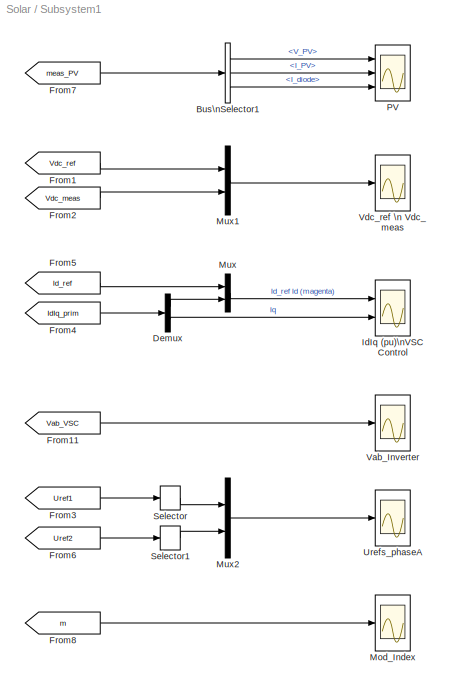
BLOCK [SubSystem] Subsystem1
  Ports = []
  RequestExecContextInheritance = off
  SID = 682
BLOCK [BusSelector] Subsystem1/Bus\nSelector1
  OutputAsBus = off
  OutputSignals = V_PV,I_PV,I_diode
  Ports = [1, 3]
  SID = 2195
BLOCK [Demux] Subsystem1/Demux
  DisplayOption = bar
  Outputs = 2
  Ports = [1, 2]
  SID = 1100
BLOCK [From] Subsystem1/From1
  GotoTag = Vdc_ref
  SID = 2181
  TagVisibility = global
BLOCK [From] Subsystem1/From11
  CloseFcn = tagdialog Close
  GotoTag = Vab_VSC
  SID = 2193
  TagVisibility = global
BLOCK [From] Subsystem1/From2
  GotoTag = Vdc_meas
  SID = 2180
  TagVisibility = global
BLOCK [From] Subsystem1/From3
  CloseFcn = tagdialog Close
  GotoTag = Uref1
  SID = 2210
  TagVisibility = global
BLOCK [From] Subsystem1/From4
  CloseFcn = tagdialog Close
  GotoTag = IdIq_prim
  SID = 1096
  TagVisibility = global
BLOCK [From] Subsystem1/From5
  CloseFcn = tagdialog Close
  GotoTag = Id_ref
  SID = 1098
  TagVisibility = global
BLOCK [From] Subsystem1/From6
  CloseFcn = tagdialog Close
  GotoTag = Uref2
  SID = 2212
  TagVisibility = global
BLOCK [From] Subsystem1/From7
  CloseFcn = tagdialog Close
  GotoTag = meas_PV
  SID = 2196
  TagVisibility = global
BLOCK [From] Subsystem1/From8
  CloseFcn = tagdialog Close
  GotoTag = m
  SID = 2217
  TagVisibility = global
BLOCK [Scope] Subsystem1/IdIq (pu)\nVSC Control
  Floating = off
  NumInputPorts = 2
  Ports = [2]
  SID = 1101
  ScopeSpecificationString = C++SS(StrPVP('Location','[866, 223, 1315, 784]'),StrPVP('ZoomMode','yonly'),MxPVP('AxesTitles',53,'struct(''axes1'',''%<SignalLabel>'',''axes2'',''%<SignalLabel>'')'),MxPVP('ScopeGraphics',56,'struct(''FigureColor'',''[0.5 0.5 0.5]'',''AxesColor'',''[0 0 0]'',''AxesTickColor'',''[1 1 1]'',''LineColors'',''[1 1 0;1 0 1;0 1 1;1 0 0;0 1 0;0 0 1]'',''LineStyles'',''-|-|-|-|-|-'',''LineWidths'',''[0.5 ...<+255ch>
BLOCK [Scope] Subsystem1/Mod_Index
  Floating = off
  NumInputPorts = 1
  Ports = [1]
  SID = 2218
  ScopeSpecificationString = C++SS(StrPVP('Location','[869, 223, 1314, 781]'),MxPVP('AxesTitles',53,'struct(''axes1'',''%<SignalLabel>'')'),MxPVP('ScopeGraphics',56,'struct(''FigureColor'',''[0.5 0.5 0.5]'',''AxesColor'',''[0 0 0]'',''AxesTickColor'',''[1 1 1]'',''LineColors'',''[1 1 0;1 0 1;0 1 1;1 0 0;0 1 0;0 0 1]'',''LineStyles'',''-|-|-|-|-|-'',''LineWidths'',''[0.5 0.5 0.5 0.5 0.5 0.5]'',''MarkerStyles'',''none|none|none...<+255ch>
BLOCK [Mux] Subsystem1/Mux
  DisplayOption = bar
  Inputs = 2
  Ports = [2, 1]
  SID = 1102
BLOCK [Mux] Subsystem1/Mux1
  DisplayOption = bar
  Inputs = 2
  Ports = [2, 1]
  SID = 2183
BLOCK [Mux] Subsystem1/Mux2
  DisplayOption = bar
  Inputs = 2
  Ports = [2, 1]
  SID = 2213
BLOCK [Scope] Subsystem1/PV
  Floating = off
  NumInputPorts = 3
  Ports = [3]
  SID = 2197
  ScopeSpecificationString = C++SS(StrPVP('Location','[868, 223, 1291, 785]'),StrPVP('ZoomMode','yonly'),MxPVP('AxesTitles',53,'struct(''axes1'',''%<SignalLabel>'',''axes2'',''%<SignalLabel>'',''axes3'',''%<SignalLabel>'')'),MxPVP('ScopeGraphics',56,'struct(''FigureColor'',''[0.5 0.5 0.5]'',''AxesColor'',''[0 0 0]'',''AxesTickColor'',''[1 1 1]'',''LineColors'',''[1 1 0;1 0 1;0 1 1;1 0 0;0 1 0;0 0 1]'',''LineStyles'',''-|-|-|-...<+342ch>
BLOCK [Selector] Subsystem1/Selector
  IndexOptions = Index vector (dialog)
  Indices = [1]
  InputPortWidth = 3
  OutputSizes = 1
  Ports = [1, 1]
  SID = 2214
BLOCK [Selector] Subsystem1/Selector1
  IndexOptions = Index vector (dialog)
  Indices = [1]
  InputPortWidth = 3
  OutputSizes = 1
  Ports = [1, 1]
  SID = 2216
BLOCK [Scope] Subsystem1/Urefs_phaseA
  Floating = off
  NumInputPorts = 1
  Ports = [1]
  SID = 2211
  ScopeSpecificationString = C++SS(StrPVP('Location','[866, 224, 1317, 783]'),StrPVP('ZoomMode','xonly'),MxPVP('AxesTitles',53,'struct(''axes1'',''%<SignalLabel>'')'),MxPVP('ScopeGraphics',56,'struct(''FigureColor'',''[0.5 0.5 0.5]'',''AxesColor'',''[0 0 0]'',''AxesTickColor'',''[1 1 1]'',''LineColors'',''[1 1 0;1 0 1;0 1 1;1 0 0;0 1 0;0 0 1]'',''LineStyles'',''-|-|-|-|-|-'',''LineWidths'',''[0.5 0.5 0.5 0.5 0.5 0.5]'',''Mark...<+257ch>
BLOCK [Scope] Subsystem1/Vab_Inverter
  Floating = off
  NumInputPorts = 1
  Ports = [1]
  SID = 2194
  ScopeSpecificationString = C++SS(StrPVP('Location','[867, 224, 1316, 780]'),MxPVP('AxesTitles',53,'struct(''axes1'',''%<SignalLabel>'')'),MxPVP('ScopeGraphics',56,'struct(''FigureColor'',''[0.5 0.5 0.5]'',''AxesColor'',''[0 0 0]'',''AxesTickColor'',''[1 1 1]'',''LineColors'',''[1 1 0;1 0 1;0 1 1;1 0 0;0 1 0;0 0 1]'',''LineStyles'',''-|-|-|-|-|-'',''LineWidths'',''[0.5 0.5 0.5 0.5 0.5 0.5]'',''MarkerStyles'',''none|none|none...<+288ch>
BLOCK [Scope] Subsystem1/Vdc_ref \n Vdc_meas
  Floating = off
  NumInputPorts = 1
  Ports = [1]
  SID = 2182
  ScopeSpecificationString = C++SS(StrPVP('Location','[867, 223, 1313, 784]'),StrPVP('ZoomMode','yonly'),MxPVP('AxesTitles',53,'struct(''axes1'',''%<SignalLabel>'')'),MxPVP('ScopeGraphics',56,'struct(''FigureColor'',''[0.5 0.5 0.5]'',''AxesColor'',''[0 0 0]'',''AxesTickColor'',''[1 1 1]'',''LineColors'',''[1 1 0;1 0 1;0 1 1;1 0 0;0 1 0;0 0 1]'',''LineStyles'',''-|-|-|-|-|-'',''LineWidths'',''[0.5 0.5 0.5 0.5 0.5 0.5]'',''Mark...<+273ch>
BLOCK [Reference] Temp  REF=simulink/Sources/Repeating\nSequence\nInterpolated
  LockScale = off
  LookUpMeth = Interpolation-Use End Values
  OutDataType = fixdt(0,8)
  OutDataTypeStr = double
  OutMax = []
  OutMin = []
  OutScaling = 2^-10
  OutValues = temp
  OutputDataTypeScalingMode = double
  Ports = [0, 1]
  SID = 2947
  SourceBlock = simulink/Sources/Repeating\nSequence\nInterpolated
  SourceProductBaseCode = SL
  SourceProductName = Simulink
  SourceType = Repeating Sequence Interpolated
  TimeValues = timeStamp
  tsamp = 0.1
BLOCK [Reference] Tr1  REF=powerlib/Elements/Three-Phase\nTransformer\n(Two Windings)
  AttributesFormatString = \\n
  BreakLoop = off
  CoreType = Three single-phase transformers
  DataFile = 'hysteresis'
  DataType = off
  DiscreteSolver = Trapezoidal iterative
  Hysteresis = off
  InitialFluxes = [ 0.8 , -0.8 , 0.7 ]
  L0 = 0.5
  Lm = Lm_xfo
  Measurements = None
  NominalPower = [Pnom_xfo, Fnom ]
  Ports = [0, 0, 0, 0, 0, 3, 3]
  Rm = Rm_xfo
  SID = 595
  Saturation = [ 0,0 ; 0.0024,1.2 ; 1.0,1.52 ]
  SetInitialFlux = off
  SetSaturation = off
  SourceBlock = powerlib/Elements/Three-Phase\nTransformer\n(Two Windings)
  SourceProductBaseCode = PS
  SourceProductName = Simscape Electrical
  SourceType = Three-Phase Transformer (Two Windings)
  TransfoNumber = 0
  UNITS = pu
  Winding1 = W1_xfo
  Winding1Connection = Yg
  Winding2 = W2_xfo
  Winding2Connection = Delta (D1)
BLOCK [Scope] Va Ia B1
  Floating = off
  NumInputPorts = 2
  Ports = [2]
  SID = 1087
  ScopeSpecificationString = C++SS(StrPVP('Location','[1126, 169, 1591, 673]'),StrPVP('ZoomMode','xonly'),MxPVP('AxesTitles',53,'struct(''axes1'',''%<SignalLabel>'',''axes2'',''%<SignalLabel>'')'),MxPVP('ScopeGraphics',56,'struct(''FigureColor'',''[0.5 0.5 0.5]'',''AxesColor'',''[0 0 0]'',''AxesTickColor'',''[1 1 1]'',''LineColors'',''[1 1 0;1 0 1;0 1 1;1 0 0;0 1 0;0 0 1]'',''LineStyles'',''-|-|-|-|-|-'',''LineWidths'',''[0.5...<+356ch>
BLOCK [Reference] Vdc   REF=powerlib/Measurements/Voltage Measurement
  AttributesFormatString = \\n
  OutputType = Magnitude
  PSBequivalent = 0
  PhasorSimulation = off
  Ports = [0, 1, 0, 0, 0, 2]
  SID = 602
  SourceBlock = powerlib/Measurements/Voltage Measurement
  SourceProductBaseCode = PS
  SourceProductName = Simscape Electrical
  SourceType = Voltage Measurement
  Tag = PoWeRsYsTeMmEaSuReMeNt
BLOCK [Reference] Vdc 1  REF=powerlib/Measurements/Voltage Measurement
  AttributesFormatString = \\n
  OutputType = Magnitude
  PSBequivalent = 0
  PhasorSimulation = off
  Ports = [0, 1, 0, 0, 0, 2]
  SID = 1007
  SourceBlock = powerlib/Measurements/Voltage Measurement
  SourceProductBaseCode = PS
  SourceProductName = Simscape Electrical
  SourceType = Voltage Measurement
  Tag = PoWeRsYsTeMmEaSuReMeNt
BLOCK [Reference] irradiation\n  REF=simulink/Sources/Repeating\nSequence\nInterpolated
  LockScale = off
  LookUpMeth = Interpolation-Use End Values
  OutDataType = fixdt(0,8)
  OutDataTypeStr = double
  OutMax = []
  OutMin = []
  OutScaling = 2^-10
  OutValues = irrad
  OutputDataTypeScalingMode = double
  Ports = [0, 1]
  SID = 2946
  SourceBlock = simulink/Sources/Repeating\nSequence\nInterpolated
  SourceProductBaseCode = SL
  SourceProductName = Simulink
  SourceType = Repeating Sequence Interpolated
  TimeValues = timeStamp
  tsamp = 0.1
BLOCK [Reference] powergui  REF=powerlib/powergui
  AutomaticDiscreteSolvers = off
  ContinueOnMaxIteration = off
  CurrentSourceSwitches = off
  DisableRonSwitches = off
  DisableSnubberDevices = off
  DisableVfSwitches = off
  DisplayEquations = off
  DisplayStyle = 1
  EnableUseOfTLC = off
  ErrMax = 1e-4
  ExternalGateDelay = off
  Frange = [0:2:500]
  FreqAxis = on
  FunctionMessages = off
  HookPort = off
  Interpol = off
  Iterations = 50
  MaxFrequency = 5000
  NonlinearTolerance = 0
  Pbase = 100e6
  Ports = []
  Priority = 1
  ResistiveCurrentMeasurement = off
  RestoreLinks = warning
  RmsSteady = 1
  SID = 9
  SPID = off
  SampleTime = Ts_Power
  ShowGrid = off
  SolverType = Tustin
  SourceBlock = powerlib/powergui
  SourceProductBaseCode = PS
  SourceProductName = Simscape Electrical
  SourceType = PSB option menu block
  StartTime = 1.4
  SwTol = 0
  Ts = 0
  UnitsV = kV
  UnitsW = MW
  Xlog = on
  Ylog = off
  ZoomFFT = off
  buscounter = 0
  cycles = 3
  display = off
  echomessages = off
  frequency = 60
  frequencyindice = 0
  frequencyindicesteady = 1
  fundamental = 60
  methode = off
  nMaxIteration = 15
  save = off
  structure = VaIa_Grid
  variable = ZData
  x0status = blocks
ANNOTATION (root): 250-kW Grid-Connected PV Array
ANNOTATION Inverter Control/Current Regulator: Current Regulator\n================
ANNOTATION Inverter Control/Current Regulator: Id positive --> The converter generates active power (\"Inverter mode\") = Active Power P positive
ANNOTATION Inverter Control/Current Regulator: Iq positive --> The converter absorbs reactive power (\"Inductive mode\") = Reactive Power Q negative
ANNOTATION Inverter Control/Current Regulator: Sign Convention: Current going out of the converter = positive current
ANNOTATION Inverter Control/MPPT \nParameters: Increment value used to increase/decrease Vdc_ref (DeltaD)
ANNOTATION Inverter Control/MPPT \nParameters: Initial value for Vdc_ref output (Dinit)
ANNOTATION Inverter Control/MPPT \nParameters: Lower limit for Vdc_ref (Dmax)
ANNOTATION Inverter Control/MPPT \nParameters: Parameters for Perturb and Observe Algorithm:
ANNOTATION Inverter Control/MPPT \nParameters: Upper limit for Vdc_ref (Dmax)
ANNOTATION Inverter Control/PLL & Measurements: PLL & Measurements\n===================
ANNOTATION Inverter Control/Uabc_ref Generation \nmax (m) = 1: (Correction for delai of Ts_Control)
ANNOTATION Inverter Control/Uabc_ref Generation \nmax (m) = 1: (Correction for transformer\n D1 connection)
ANNOTATION Inverter Control/Uabc_ref Generation \nmax (m) = 1: Uref Generation\n==============
LINE Bus\nSelector:1 -> Inverter Control:5
LINE Bus\nSelector:2 -> Inverter Control:6
LINE From10:1 -> Inverter Control:2
LINE From1:1 -> Inverter Control:4
LINE From8:1 -> Bus\nSelector:1
LINE From9:1 -> Inverter Control:3
LINE Inverter Control/Current Regulator/Add1:1 -> Inverter Control/Current Regulator/Mux:1
LINE Inverter Control/Current Regulator/Add2:1 -> Inverter Control/Current Regulator/Saturation:1
LINE Inverter Control/Current Regulator/Add3:1 -> Inverter Control/Current Regulator/Mux:2
NET Inverter Control/Current Regulator/Demux1:1 -> Inverter Control/Current Regulator/Lff:1, Inverter Control/Current Regulator/Rff :1
NET Inverter Control/Current Regulator/Demux1:2 -> Inverter Control/Current Regulator/Lff  :1, Inverter Control/Current Regulator/Rff:1
LINE Inverter Control/Current Regulator/Demux:1 -> Inverter Control/Current Regulator/Add1:1
LINE Inverter Control/Current Regulator/Demux:2 -> Inverter Control/Current Regulator/Add3:1
LINE Inverter Control/Current Regulator/IdIq_meas:1 -> Inverter Control/Current Regulator/Sum:1
NET Inverter Control/Current Regulator/IdIq_ref:1 -> Inverter Control/Current Regulator/Demux1:1, Inverter Control/Current Regulator/Sum:2
LINE Inverter Control/Current Regulator/Lff  :1 -> Inverter Control/Current Regulator/Add1:3
LINE Inverter Control/Current Regulator/Lff:1 -> Inverter Control/Current Regulator/Add3:3
LINE Inverter Control/Current Regulator/Mux:1 -> Inverter Control/Current Regulator/Add2:2
NET Inverter Control/Current Regulator/PI:1 -> Inverter Control/Current Regulator/Add2:1, Inverter Control/Current Regulator/PI_Ireg1:1
LINE Inverter Control/Current Regulator/Rff :1 -> Inverter Control/Current Regulator/Add1:2
LINE Inverter Control/Current Regulator/Rff:1 -> Inverter Control/Current Regulator/Add3:2
LINE Inverter Control/Current Regulator/Saturation:1 -> Inverter Control/Current Regulator/VdVq_conv:1
LINE Inverter Control/Current Regulator/Sum:1 -> Inverter Control/Current Regulator/PI:1
LINE Inverter Control/Current Regulator/VdVq_meas:1 -> Inverter Control/Current Regulator/Demux:1
LINE Inverter Control/Current Regulator:1 -> Inverter Control/Uabc_ref Generation \nmax (m) = 1:2
LINE Inverter Control/I_PV:1 -> Inverter Control/MPPT Controller\nusing Perturbe \n& Observe technique\n :4
LINE Inverter Control/Iabc_prim:1 -> Inverter Control/PLL & Measurements:2
LINE Inverter Control/Iq_ref:1 -> Inverter Control/Mux:2
LINE Inverter Control/MPPT Controller\nusing Perturbe \n& Observe technique\n / Demux :1 -> Inverter Control/MPPT Controller\nusing Perturbe \n& Observe technique\n / Terminator :1
LINE Inverter Control/MPPT Controller\nusing Perturbe \n& Observe technique\n / SFunction :1 -> Inverter Control/MPPT Controller\nusing Perturbe \n& Observe technique\n / Demux :1
LINE Inverter Control/MPPT Controller\nusing Perturbe \n& Observe technique\n / SFunction :2 -> Inverter Control/MPPT Controller\nusing Perturbe \n& Observe technique\n /D:1
LINE Inverter Control/MPPT Controller\nusing Perturbe \n& Observe technique\n /Enabled:1 -> Inverter Control/MPPT Controller\nusing Perturbe \n& Observe technique\n / SFunction :2
LINE Inverter Control/MPPT Controller\nusing Perturbe \n& Observe technique\n /I:1 -> Inverter Control/MPPT Controller\nusing Perturbe \n& Observe technique\n / SFunction :4
LINE Inverter Control/MPPT Controller\nusing Perturbe \n& Observe technique\n /Param:1 -> Inverter Control/MPPT Controller\nusing Perturbe \n& Observe technique\n / SFunction :1
LINE Inverter Control/MPPT Controller\nusing Perturbe \n& Observe technique\n /V:1 -> Inverter Control/MPPT Controller\nusing Perturbe \n& Observe technique\n / SFunction :3
LINE Inverter Control/MPPT Controller\nusing Perturbe \n& Observe technique\n :1 -> Inverter Control/Switch:1
LINE Inverter Control/MPPT \nParameters/Iph_1:1 -> Inverter Control/MPPT \nParameters/Mux:2
LINE Inverter Control/MPPT \nParameters/Iph_2:1 -> Inverter Control/MPPT \nParameters/Mux:3
LINE Inverter Control/MPPT \nParameters/Iph_3:1 -> Inverter Control/MPPT \nParameters/Mux:4
LINE Inverter Control/MPPT \nParameters/Iph_:1 -> Inverter Control/MPPT \nParameters/Mux:1
LINE Inverter Control/MPPT \nParameters/Mux:1 -> Inverter Control/MPPT \nParameters/Param:1
LINE Inverter Control/MPPT \nParameters:1 -> Inverter Control/MPPT Controller\nusing Perturbe \n& Observe technique\n :1
LINE Inverter Control/Mux:1 -> Inverter Control/Current Regulator:3
NET Inverter Control/On:1 -> Inverter Control/MPPT Controller\nusing Perturbe \n& Observe technique\n :2, Inverter Control/Switch:2
NET Inverter Control/Overmodulation:1 -> Inverter Control/Goto3:1, Inverter Control/PWM Generator\n(3-Level):1
LINE Inverter Control/PLL & Measurements/Iabc_prim:1 -> Inverter Control/PLL & Measurements/V->pu1:1
LINE Inverter Control/PLL & Measurements/PLL\n(3ph):1 -> Inverter Control/PLL & Measurements/Terminator:1
NET Inverter Control/PLL & Measurements/PLL\n(3ph):2 -> Inverter Control/PLL & Measurements/abc to dq0:2, Inverter Control/PLL & Measurements/abc to dq1:2, Inverter Control/PLL & Measurements/wt:1
NET Inverter Control/PLL & Measurements/Selector1:1 -> Inverter Control/PLL & Measurements/Goto3:1, Inverter Control/PLL & Measurements/IdIq_prim:1
LINE Inverter Control/PLL & Measurements/Selector2:1 -> Inverter Control/PLL & Measurements/VdVq_prim:1
LINE Inverter Control/PLL & Measurements/V->pu1:1 -> Inverter Control/PLL & Measurements/abc to dq1:1
NET Inverter Control/PLL & Measurements/V->pu:1 -> Inverter Control/PLL & Measurements/PLL\n(3ph):1, Inverter Control/PLL & Measurements/abc to dq0:1
LINE Inverter Control/PLL & Measurements/Vabc_prim:1 -> Inverter Control/PLL & Measurements/V->pu:1
LINE Inverter Control/PLL & Measurements/abc to dq0:1 -> Inverter Control/PLL & Measurements/Selector2:1
LINE Inverter Control/PLL & Measurements/abc to dq1:1 -> Inverter Control/PLL & Measurements/Selector1:1
LINE Inverter Control/PLL & Measurements:1 -> Inverter Control/Uabc_ref Generation \nmax (m) = 1:1
LINE Inverter Control/PLL & Measurements:2 -> Inverter Control/Current Regulator:1
LINE Inverter Control/PLL & Measurements:3 -> Inverter Control/Current Regulator:2
LINE Inverter Control/PWM Generator\n(3-Level):1 -> Inverter Control/g:1
NET Inverter Control/Switch:1 -> Inverter Control/Goto1:1, Inverter Control/VDC Regulator:2
LINE Inverter Control/Uabc_ref Generation \nmax (m) = 1/Add1:1 -> Inverter Control/Uabc_ref Generation \nmax (m) = 1/Add2:2
LINE Inverter Control/Uabc_ref Generation \nmax (m) = 1/Add2:1 -> Inverter Control/Uabc_ref Generation \nmax (m) = 1/Trigonometric\nFunction:1
NET Inverter Control/Uabc_ref Generation \nmax (m) = 1/Complex to\nMagnitude-Angle:1 -> Inverter Control/Uabc_ref Generation \nmax (m) = 1/Goto1:1, Inverter Control/Uabc_ref Generation \nmax (m) = 1/Product2:1
LINE Inverter Control/Uabc_ref Generation \nmax (m) = 1/Complex to\nMagnitude-Angle:2 -> Inverter Control/Uabc_ref Generation \nmax (m) = 1/Add2:1
LINE Inverter Control/Uabc_ref Generation \nmax (m) = 1/Constant1:1 -> Inverter Control/Uabc_ref Generation \nmax (m) = 1/Gain1:1
LINE Inverter Control/Uabc_ref Generation \nmax (m) = 1/Constant2:1 -> Inverter Control/Uabc_ref Generation \nmax (m) = 1/Add1:2
LINE Inverter Control/Uabc_ref Generation \nmax (m) = 1/Constant3:1 -> Inverter Control/Uabc_ref Generation \nmax (m) = 1/Product:2
LINE Inverter Control/Uabc_ref Generation \nmax (m) = 1/Constant4:1 -> Inverter Control/Uabc_ref Generation \nmax (m) = 1/Add1:4
LINE Inverter Control/Uabc_ref Generation \nmax (m) = 1/Constant:1 -> Inverter Control/Uabc_ref Generation \nmax (m) = 1/Add1:3
LINE Inverter Control/Uabc_ref Generation \nmax (m) = 1/Demux1:1 -> Inverter Control/Uabc_ref Generation \nmax (m) = 1/Real-Imag to\nComplex:1
LINE Inverter Control/Uabc_ref Generation \nmax (m) = 1/Demux1:2 -> Inverter Control/Uabc_ref Generation \nmax (m) = 1/Real-Imag to\nComplex:2
LINE Inverter Control/Uabc_ref Generation \nmax (m) = 1/Gain1:1 -> Inverter Control/Uabc_ref Generation \nmax (m) = 1/Product:1
LINE Inverter Control/Uabc_ref Generation \nmax (m) = 1/Product1:1 -> Inverter Control/Uabc_ref Generation \nmax (m) = 1/Demux1:1
LINE Inverter Control/Uabc_ref Generation \nmax (m) = 1/Product2:1 -> Inverter Control/Uabc_ref Generation \nmax (m) = 1/Uabc_ref:1
LINE Inverter Control/Uabc_ref Generation \nmax (m) = 1/Product:1 -> Inverter Control/Uabc_ref Generation \nmax (m) = 1/Product1:2
LINE Inverter Control/Uabc_ref Generation \nmax (m) = 1/Real-Imag to\nComplex:1 -> Inverter Control/Uabc_ref Generation \nmax (m) = 1/Complex to\nMagnitude-Angle:1
LINE Inverter Control/Uabc_ref Generation \nmax (m) = 1/Trigonometric\nFunction:1 -> Inverter Control/Uabc_ref Generation \nmax (m) = 1/Product2:2
LINE Inverter Control/Uabc_ref Generation \nmax (m) = 1/VdVq_conv:1 -> Inverter Control/Uabc_ref Generation \nmax (m) = 1/Product1:1
LINE Inverter Control/Uabc_ref Generation \nmax (m) = 1/wt:1 -> Inverter Control/Uabc_ref Generation \nmax (m) = 1/Add1:1
LINE Inverter Control/Uabc_ref Generation \nmax (m) = 1:1 -> Inverter Control/Unit\nDelay:1
NET Inverter Control/Unit\nDelay:1 -> Inverter Control/Goto2:1, Inverter Control/Overmodulation:1
LINE Inverter Control/VDC Regulator/PI:1 -> Inverter Control/VDC Regulator/Id_ref:1
LINE Inverter Control/VDC Regulator/Rtot_pu3:1 -> Inverter Control/VDC Regulator/PI:1
LINE Inverter Control/VDC Regulator/Sum:1 -> Inverter Control/VDC Regulator/Rtot_pu3:1
LINE Inverter Control/VDC Regulator/Vdc_meas:1 -> Inverter Control/VDC Regulator/Sum:1
LINE Inverter Control/VDC Regulator/Vdc_ref:1 -> Inverter Control/VDC Regulator/Sum:2
NET Inverter Control/VDC Regulator:1 -> Inverter Control/Goto5:1, Inverter Control/Mux:1
LINE Inverter Control/V_PV:1 -> Inverter Control/MPPT Controller\nusing Perturbe \n& Observe technique\n :3
LINE Inverter Control/Vabc_prim:1 -> Inverter Control/PLL & Measurements:1
LINE Inverter Control/Vdc_meas:1 -> Inverter Control/VDC Regulator:1
LINE Inverter Control/Vnom_dc1:1 -> Inverter Control/Switch:3
LINE Inverter Control:1 -> 3-Level\nIGBTs Bridge:1
LINE MPPT_On:1 -> Inverter Control:1
LINE PV Array:1 -> Goto2:1
NET Pac/From2:1 -> Pac/Power\n(Positive-Sequence):1, Pac/Selector:1
NET Pac/From4:1 -> Pac/Power\n(Positive-Sequence):2, Pac/Selector1:1
LINE Pac/Power\n(Positive-Sequence):1 -> Pac/W2kW:1
LINE Pac/Power\n(Positive-Sequence):2 -> Pac/Terminator1:1
LINE Pac/Selector1:1 -> Pac/Ia:1
LINE Pac/Selector:1 -> Pac/Va:1
LINE Pac/W2kW:1 -> Pac/P:1
LINE Pac:1 -> Va Ia B1:1
LINE Pac:2 -> Va Ia B1:2
LINE Pac:3 -> P_B1 (kW):1
LINE Pdc/Bus\nSelector1:1 -> Pdc/V mean1:1
LINE Pdc/Bus\nSelector1:2 -> Pdc/Mean:1
LINE Pdc/Bus\nSelector1:3 -> Pdc/Mean1:1
LINE Pdc/From12:1 -> Pdc/Bus\nSelector1:1
LINE Pdc/Gain:1 -> Pdc/Pmean:1
LINE Pdc/Mean1:1 -> Pdc/Product:2
NET Pdc/Mean:1 -> Pdc/Product:1, Pdc/V mean:1
LINE Pdc/Product:1 -> Pdc/Gain:1
LINE Pdc:1 -> PV:1
LINE Pdc:2 -> PV:2
LINE Pdc:3 -> PV:3
LINE Rate\nLimiter:1 -> PV Array:1
LINE Saturation:1 -> PV Array:2
LINE Subsystem1/Bus\nSelector1:1 -> Subsystem1/PV:1
LINE Subsystem1/Bus\nSelector1:2 -> Subsystem1/PV:2
LINE Subsystem1/Bus\nSelector1:3 -> Subsystem1/PV:3
LINE Subsystem1/Demux:1 -> Subsystem1/Mux:2
LINE Subsystem1/Demux:2 -> Subsystem1/IdIq (pu)\nVSC Control:2
LINE Subsystem1/From11:1 -> Subsystem1/Vab_Inverter:1
LINE Subsystem1/From1:1 -> Subsystem1/Mux1:1
LINE Subsystem1/From2:1 -> Subsystem1/Mux1:2
LINE Subsystem1/From3:1 -> Subsystem1/Selector:1
LINE Subsystem1/From4:1 -> Subsystem1/Demux:1
LINE Subsystem1/From5:1 -> Subsystem1/Mux:1
LINE Subsystem1/From6:1 -> Subsystem1/Selector1:1
LINE Subsystem1/From7:1 -> Subsystem1/Bus\nSelector1:1
LINE Subsystem1/From8:1 -> Subsystem1/Mod_Index:1
LINE Subsystem1/Mux1:1 -> Subsystem1/Vdc_ref \n Vdc_meas:1
LINE Subsystem1/Mux2:1 -> Subsystem1/Urefs_phaseA:1
LINE Subsystem1/Mux:1 -> Subsystem1/IdIq (pu)\nVSC Control:1
LINE Subsystem1/Selector1:1 -> Subsystem1/Mux2:2
LINE Subsystem1/Selector:1 -> Subsystem1/Mux2:1
LINE Temp:1 -> Saturation:1
LINE Vdc 1:1 -> Goto1:1
LINE Vdc :1 -> Goto5:1
LINE irradiation\n:1 -> Rate\nLimiter:1
PLINE 120 kV // 25 kV\n47 MVA:LConn1 -- 120kV\n2500MVA:RConn1
PLINE 120 kV // 25 kV\n47 MVA:LConn2 -- 120kV\n2500MVA:RConn2
PLINE 120 kV // 25 kV\n47 MVA:LConn3 -- 120kV\n2500MVA:RConn3
PNET net1: 120 kV // 25 kV\n47 MVA:RConn1 -- 14-km\nFeeder:LConn1 -- 30-MW\n2-Mvar\nLoad:LConn1 -- Grounding\nTransformer :LConn1
PNET net2: 120 kV // 25 kV\n47 MVA:RConn2 -- 14-km\nFeeder:LConn2 -- 30-MW\n2-Mvar\nLoad:LConn2 -- Grounding\nTransformer :LConn2
PNET net3: 120 kV // 25 kV\n47 MVA:RConn3 -- 14-km\nFeeder:LConn3 -- 30-MW\n2-Mvar\nLoad:LConn3 -- Grounding\nTransformer :LConn3
PLINE 14-km\nFeeder:RConn1 -- 8-km\nFeeder:LConn1
PLINE 14-km\nFeeder:RConn2 -- 8-km\nFeeder:LConn2
PLINE 14-km\nFeeder:RConn3 -- 8-km\nFeeder:LConn3
PLINE 2-MW\nLoad:LConn1 -- 8-km\nFeeder:RConn1
PLINE 2-MW\nLoad:LConn2 -- 8-km\nFeeder:RConn2
PLINE 2-MW\nLoad:LConn3 -- 8-km\nFeeder:RConn3
PLINE 250-kW\nLoad:LConn1 -- B1:RConn1
PLINE 250-kW\nLoad:LConn2 -- B1:RConn2
PLINE 250-kW\nLoad:LConn3 -- B1:RConn3
PNET net4: 3-Level\nIGBTs Bridge:LConn1 -- RL:LConn1 -- Vdc 1:LConn1
PNET net5: 3-Level\nIGBTs Bridge:LConn2 -- RL:LConn2 -- Vdc 1:LConn2
PLINE 3-Level\nIGBTs Bridge:LConn3 -- RL:LConn3
PNET net6: 3-Level\nIGBTs Bridge:RConn1 -- C1:LConn1 -- PV Array:RConn1 -- Vdc :LConn1
PNET net7: 3-Level\nIGBTs Bridge:RConn2 -- C1:RConn1 -- C2:LConn1
PNET net8: 3-Level\nIGBTs Bridge:RConn3 -- C2:RConn1 -- PV Array:RConn2 -- Vdc :LConn2
PLINE 3.3ohms :LConn1 -- Grounding\nTransformer :RConn1
PLINE 3.3ohms :RConn1 -- Ground3:LConn1
PLINE B1:LConn1 -- Tr1:LConn1
PLINE B1:LConn2 -- Tr1:LConn2
PLINE B1:LConn3 -- Tr1:LConn3
PNET net9: C:LConn1 -- RL:RConn1 -- Tr1:RConn1
PNET net10: C:LConn2 -- RL:RConn2 -- Tr1:RConn2
PNET net11: C:LConn3 -- RL:RConn3 -- Tr1:RConn3
note: NET lines group one-source signal fan-out (src -> all destinations, sorted); 1:1 wires keep LINE; PNET lines group multi-terminal physical nets as a canonical sorted terminal list (undirected conserving connections); 2-terminal nets keep the pairwise PLINE form
CHART Inverter Control/MPPT Controller\nusing Perturbe \n& Observe technique\n  states=1 transitions=1
  STATE_LABEL 'eML_blk_kernel()'
